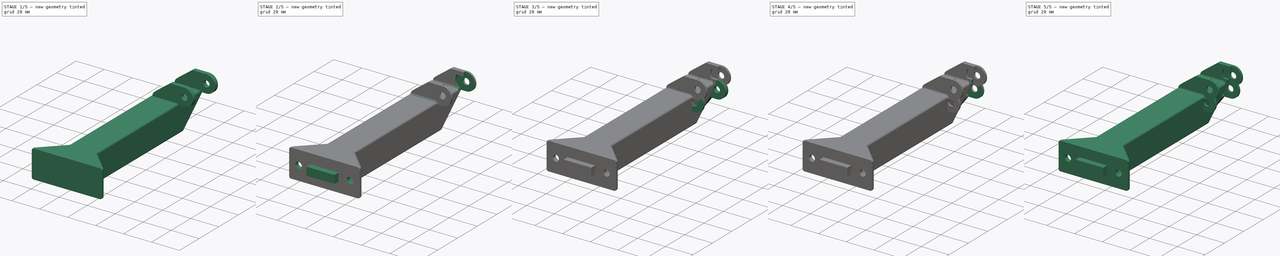
[diagram: build sequence overview — one tinted view per stage of 5, left to right]
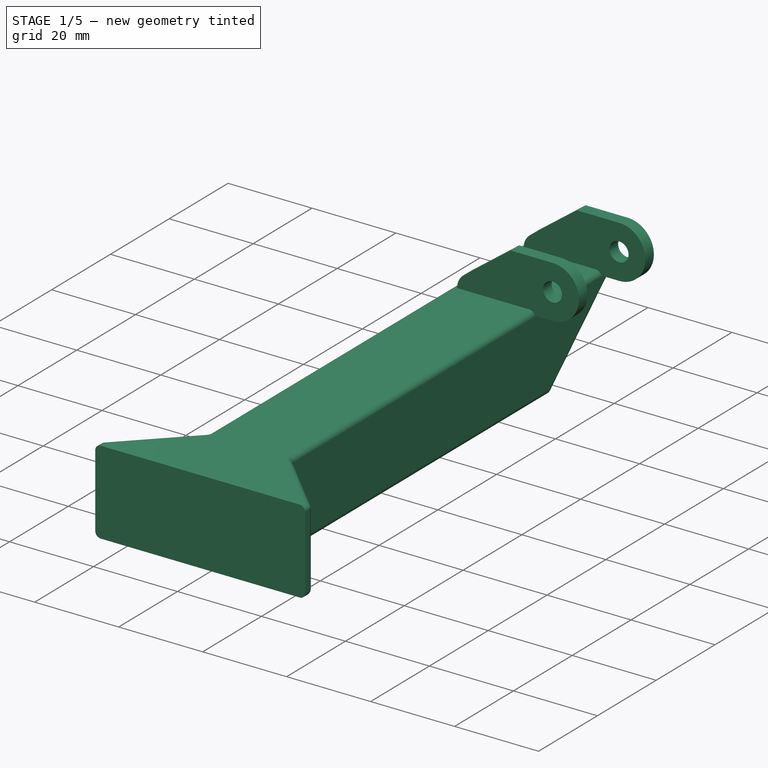
[diagram: stage 1 of 5 — iso view after this stage's code; geometry added in this stage tinted green]
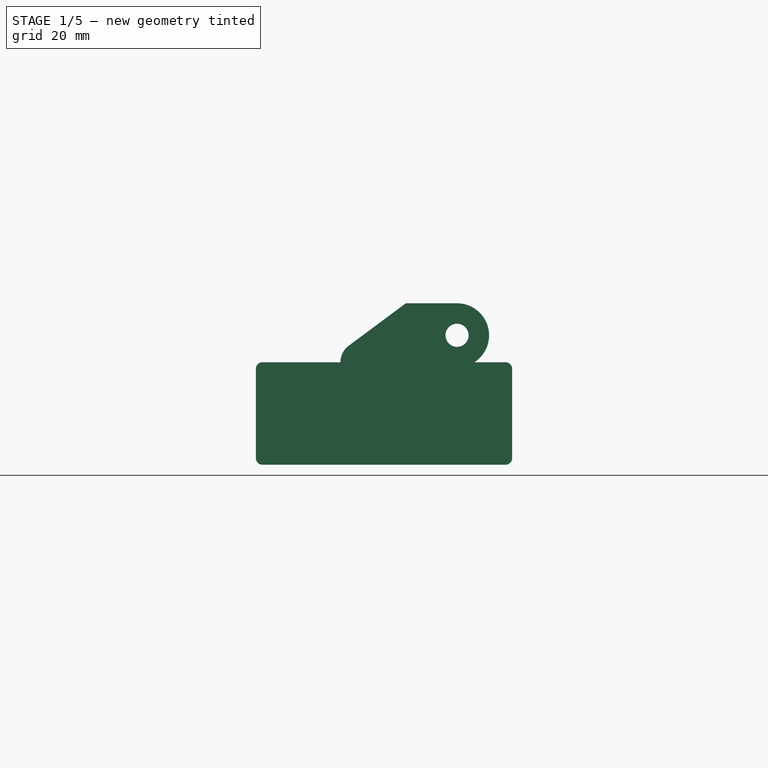
[diagram: stage 1 of 5 — front view after this stage's code; geometry added in this stage tinted green]
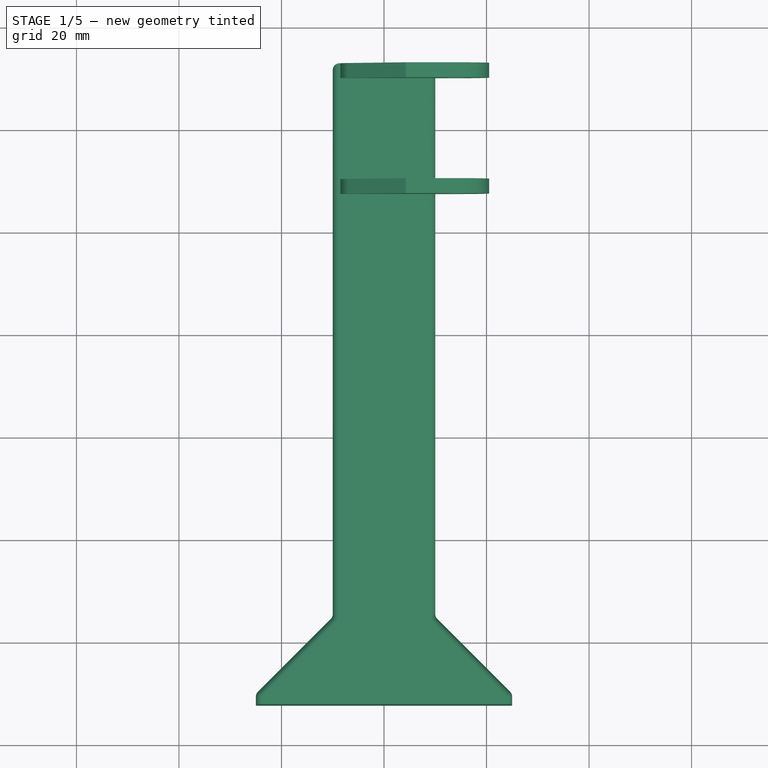
[diagram: stage 1 of 5 — top view after this stage's code; geometry added in this stage tinted green]
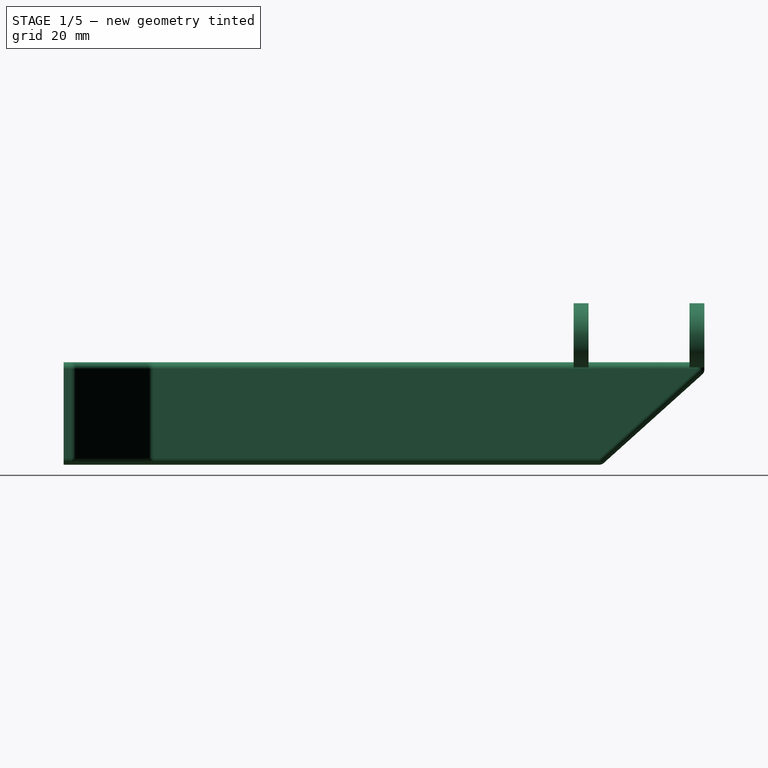
[diagram: stage 1 of 5 — right view after this stage's code; geometry added in this stage tinted green]
FCSTD DOCUMENT  (FreeCAD 0.19R24366 (Git))
Label: DragChain
License: Creative Commons Attribution-NonCommercial-ShareAlike
LicenseURL: http://creativecommons.org/licenses/by-nc-sa/4.0/
objects: Sketcher::SketchObject×33, PartDesign::Pad×11, PartDesign::Pocket×11, PartDesign::Plane×5, PartDesign::Fillet×4, PartDesign::Body×3, Spreadsheet::Sheet×1, PartDesign::AdditiveLoft×1
note: 95 computed .brp shape members not serialized (recipe doc carries the construction recipe); baked Part::Feature solids carry a one-line shape summary decoded from their .brp

FEATURE [PartDesign::Body] Body001  label="10x20End_Profile"
  Group = -> [Sketch007,Sketch008,Sketch014,Sketch009,Pad003,Sketch010,Sketch018,Pocket006,Pad004,Sketch011,Pad005,Sketch012,Pocket002,Sketch013,Pocket003,DatumPlane,Sketch015,Pocket004,Sketch016,Pocket005,Sketch017,Pad006,Fillet001]
  Origin = -> Origin001
  Tip = -> Fillet001
FEATURE [Sketcher::SketchObject] Sketch019  label="10x20EE_TXY"
  FullyConstrained = true
  MapMode = 5
  Support = -> [XY_Plane002]
  sketch-geometry (14):
    g0: LineSegment StartX=-10 StartY=12.75 StartZ=0 EndX=10 EndY=12.75 EndZ=0
    g1: LineSegment StartX=10 StartY=12.75 StartZ=0 EndX=10 EndY=-12.75 EndZ=0
    g2: LineSegment StartX=10 StartY=-12.75 StartZ=0 EndX=-10 EndY=-12.75 EndZ=0
    g3: LineSegment StartX=-10 StartY=-12.75 StartZ=0 EndX=-10 EndY=12.75 EndZ=0
    g4: LineSegment StartX=1.1e-15 StartY=12.75 StartZ=0 EndX=1.1e-15 EndY=-12.75 EndZ=0
    g5: LineSegment StartX=-10 StartY=-1.1e-15 StartZ=0 EndX=10 EndY=-1.1e-15 EndZ=0
    g6: LineSegment StartX=-10 StartY=-12.75 StartZ=0 EndX=-10 EndY=-95.25 EndZ=0
    g7: LineSegment StartX=-25 StartY=-112.25 StartZ=0 EndX=25 EndY=-112.25 EndZ=0
    g8: LineSegment StartX=10 StartY=-95.25 StartZ=0 EndX=10 EndY=-12.75 EndZ=0
    g9: LineSegment StartX=-10 StartY=-95.25 StartZ=0 EndX=10 EndY=-95.25 EndZ=0
    g10: LineSegment StartX=-25 StartY=-112.25 StartZ=0 EndX=-25 EndY=-110.25 EndZ=0
    g11: LineSegment StartX=-25 StartY=-110.25 StartZ=0 EndX=-10 EndY=-95.25 EndZ=0
    g12: LineSegment StartX=25 StartY=-112.25 StartZ=0 EndX=25 EndY=-110.25 EndZ=0
    g13: LineSegment StartX=25 StartY=-110.25 StartZ=0 EndX=10 EndY=-95.25 EndZ=0
  constraints (39):
    c: Coincident(g0,g1)
    c: Coincident(g1,g2)
    c: Coincident(g2,g3)
    c: Coincident(g3,g0)
    c: Horizontal(g0)
    c: Horizontal(g2)
    c: Vertical(g1)
    c: Vertical(g3)
    c: DistanceY(g3,g3) = 25.5  'Width'
    c: PointOnObject(g4,g2)
    c: Vertical(g4)
    c: PointOnObject(g5,g1)
    c: Horizontal(g5)
    c: Symmetric(g0,g0,g4)
    c: Symmetric(g2,g0,g5)
    c: Symmetric(g0,g1,g-1)  '__ANCHOR__'
    c: Vertical(g6)
    c: Horizontal(g7)
    c: Coincident(g9,g6)
    c: Horizontal(g9)
    c: Coincident(g7,g10)
    c: Vertical(g10)
    c: Coincident(g10,g11)
    c: Coincident(g11,g6)
    c: Coincident(g7,g12)
    c: Vertical(g12)
    c: Coincident(g12,g13)
    c: Equal(g10,g12)
    c: Equal(g11,g13)
    c: Angle(g7,g11) = 0.785398
    c: DistanceX(g10,g6) = 15
    c: DistanceY(g10,g10) = 2
    c: DistanceX(g9,g9) = 20
    c: Coincident(g13,g8)
    c: Vertical(g8)
    c: Coincident(g8,g9)
    c: Coincident(g8,g1)
    c: Coincident(g2,g6)
    c: DistanceY(g7,g0) = 125
FEATURE [Sketcher::SketchObject] Sketch020  label="10x20EE_TXZ"
  ExternalGeometry = -> [Sketch019]
  FullyConstrained = true
  MapMode = 5
  Placement = pos=(0,0,0) rot=(1,0,0;1.5708rad)
  Support = -> [XZ_Plane002]
  sketch-geometry (19):
    g0: LineSegment StartX=-6.88736 StartY=13.2094 StartZ=0 EndX=4.25 EndY=21.494 EndZ=0
    g1: LineSegment StartX=4.25 StartY=21.494 StartZ=0 EndX=14.25 EndY=21.494 EndZ=0
    g2: LineSegment StartX=14.25 StartY=21.494 StartZ=0 EndX=14.25 EndY=8.99404 EndZ=0
    g3: ArcOfCircle CenterX=14.25 CenterY=15.244 CenterZ=0 NormalX=0 NormalY=0 NormalZ=1 AngleXU=0 Radius=6.25 StartAngle=4.71239 EndAngle=7.85398
    g4: Circle CenterX=14.25 CenterY=15.244 CenterZ=0 NormalX=0 NormalY=0 NormalZ=1 AngleXU=0 Radius=2.25
    g5: LineSegment StartX=14.25 StartY=15.244 StartZ=0 EndX=20.5 EndY=15.244 EndZ=0
    g6: ArcOfCircle CenterX=14.25 CenterY=15.244 CenterZ=0 NormalX=0 NormalY=0 NormalZ=1 AngleXU=0 Radius=6.25 StartAngle=1.5708 EndAngle=4.71239
    g7: LineSegment StartX=13.5 StartY=21.494 StartZ=0 EndX=13.5 EndY=18.794 EndZ=0
    g8: LineSegment StartX=13.5 StartY=18.794 StartZ=0 EndX=8.50892 EndY=18.794 EndZ=0
    g9: ArcOfCircle CenterX=14.25 CenterY=15.244 CenterZ=0 NormalX=0 NormalY=0 NormalZ=1 AngleXU=0 Radius=6.75 StartAngle=2.58779 EndAngle=4.03131
    g10: LineSegment StartX=8.50892 StartY=18.794 StartZ=0 EndX=8.93419 EndY=18.5311 EndZ=0
    g11: LineSegment StartX=-10 StartY=10 StartZ=0 EndX=-10 EndY=-10 EndZ=0
    g12: LineSegment StartX=-10 StartY=-10 StartZ=0 EndX=10 EndY=-10 EndZ=0
    g13: LineSegment StartX=10 StartY=-10 StartZ=0 EndX=10 EndY=10 EndZ=0
    g14: ArcOfCircle CenterX=-4.5 CenterY=10 CenterZ=0 NormalX=0 NormalY=0 NormalZ=1 AngleXU=0 Radius=4 StartAngle=2.21035 EndAngle=3.14159
    g15: LineSegment StartX=-10 StartY=10 StartZ=0 EndX=10 EndY=10 EndZ=0
    g16: LineSegment StartX=14.25 StartY=8.99404 StartZ=0 EndX=10 EndY=8.99404 EndZ=0
    g17: LineSegment StartX=10 StartY=8.99404 StartZ=0 EndX=-8.5 EndY=8.99404 EndZ=0
    g18: LineSegment StartX=-8.5 StartY=8.99404 StartZ=0 EndX=-8.5 EndY=10 EndZ=0
  constraints (55):
    c: Coincident(g0,g1)
    c: Horizontal(g1)
    c: Coincident(g2,g1)
    c: Vertical(g2)
    c: PointOnObject(g3,g2)
    c: Coincident(g3,g1)
    c: Coincident(g4,g3)
    c: Radius(g3) = 6.25
    c: Coincident(g5,g3)
    c: PointOnObject(g5,g3)
    c: Horizontal(g5)
    c: Radius(g4) = 2.25
    c: Coincident(g6,g3)
    c: PointOnObject(g6,g2)
    c: PointOnObject(g7,g1)
    c: Vertical(g7)
    c: Coincident(g8,g7)
    c: Horizontal(g8)
    c: DistanceY(g7,g7) = 2.7
    c: DistanceX(g7,g5) = 7
    c: Coincident(g9,g3)
    c: Coincident(g9,g8)
    c: Coincident(g10,g8)
    c: PointOnObject(g10,g6)
    c: PointOnObject(g3,g10)
    c: Distance(g10) = 0.5
    c: Vertical(g11)
    c: Coincident(g11,g12)
    c: Horizontal(g12)
    c: Coincident(g12,g13)
    c: Vertical(g13)
    c: Coincident(g2,g3)
    c: Coincident(g2,g6)
    c: Coincident(g13,g9)
    c: DistanceX(g9,g3) = 4.25
    c: Equal(g13,g11)
    c: DistanceX(g12,g12) = 20
    c: Equal(g11,g12)
    c: Tangent(g0,g14) = 1.5708
    c: Radius(g14) = 4
    c: Coincident(g15,g11)
    c: Coincident(g15,g9)
    c: Coincident(g16,g3)
    c: PointOnObject(g16,g13)
    c: Horizontal(g16)
    c: Symmetric(g11,g11,g-3)
    c: PointOnObject(g14,g15)
    c: Distance(g11,g14) = 1.5
    c: DistanceX(g1,g1) = 10
    c: PointOnObject(g14,g15)
    c: Coincident(g17,g16)
    c: Horizontal(g17)
    c: Coincident(g18,g17)
    c: Coincident(g18,g14)
    c: Vertical(g18)
FEATURE [Sketcher::SketchObject] Sketch022
  AttachmentOffset = pos=(0,0,12.75) rot=(0,0,1;0rad)
  ExternalGeometry = -> [Sketch020]
  FullyConstrained = true
  MapMode = 5
  Placement = pos=(0,-12.75,-2.8e-15) rot=(1,0,0;1.5708rad)
  Support = -> [XZ_Plane002]
  expr: .AttachmentOffset.Base.z = Sketch019.Constraints.Width / 2
  sketch-geometry (7):
    g0: Circle CenterX=14.25 CenterY=15.244 CenterZ=0 NormalX=0 NormalY=0 NormalZ=1 AngleXU=0 Radius=2.25
    g1: ArcOfCircle CenterX=-4.5 CenterY=10 CenterZ=0 NormalX=0 NormalY=0 NormalZ=1 AngleXU=0 Radius=4 StartAngle=2.21035 EndAngle=3.14159
    g2: ArcOfCircle CenterX=14.25 CenterY=15.244 CenterZ=0 NormalX=0 NormalY=0 NormalZ=1 AngleXU=0 Radius=6.25 StartAngle=4.71239 EndAngle=7.85398
    g3: LineSegment StartX=14.25 StartY=21.494 StartZ=0 EndX=4.25 EndY=21.494 EndZ=0
    g4: LineSegment StartX=4.25 StartY=21.494 StartZ=0 EndX=-6.88736 EndY=13.2094 EndZ=0
    g5: LineSegment StartX=-8.5 StartY=10 StartZ=0 EndX=-8.5 EndY=8.99404 EndZ=0
    g6: LineSegment StartX=-8.5 StartY=8.99404 StartZ=0 EndX=14.25 EndY=8.99404 EndZ=0
  constraints (16):
    c: Coincident(g0,g-7)
    c: Coincident(g1,g-5)
    c: Coincident(g1,g-5)
    c: Equal(g1,g-5)
    c: Coincident(g2,g-6)
    c: Coincident(g2,g-3)
    c: Equal(g-3,g2)
    c: Equal(g0,g-7)
    c: Coincident(g3,g2)
    c: Coincident(g3,g-6)
    c: Coincident(g4,g3)
    c: Coincident(g4,g1)
    c: Coincident(g5,g1)
    c: Coincident(g5,g-4)
    c: Coincident(g6,g5)
    c: Coincident(g6,g2)
FEATURE [Sketcher::SketchObject] Sketch023
  AttachmentOffset = pos=(0,0,-12.75) rot=(0,0,1;0rad)
  ExternalGeometry = -> [Sketch020]
  FullyConstrained = true
  MapMode = 5
  Placement = pos=(0,12.75,2.8e-15) rot=(1,0,0;1.5708rad)
  Support = -> [XZ_Plane002]
  expr: .AttachmentOffset.Base.z = -Sketch019.Constraints.Width / 2
  sketch-geometry (7):
    g0: ArcOfCircle CenterX=-4.5 CenterY=10 CenterZ=0 NormalX=0 NormalY=0 NormalZ=1 AngleXU=0 Radius=4 StartAngle=2.21035 EndAngle=3.14159
    g1: ArcOfCircle CenterX=14.25 CenterY=15.244 CenterZ=0 NormalX=0 NormalY=0 NormalZ=1 AngleXU=0 Radius=6.25 StartAngle=4.71239 EndAngle=7.85398
    g2: LineSegment StartX=14.25 StartY=8.99404 StartZ=0 EndX=-8.5 EndY=8.99404 EndZ=0
    g3: LineSegment StartX=-8.5 StartY=8.99404 StartZ=0 EndX=-8.5 EndY=10 EndZ=0
    g4: LineSegment StartX=-6.88736 StartY=13.2094 StartZ=0 EndX=4.25 EndY=21.494 EndZ=0
    g5: LineSegment StartX=4.25 StartY=21.494 StartZ=0 EndX=14.25 EndY=21.494 EndZ=0
    g6: Circle CenterX=14.25 CenterY=15.244 CenterZ=0 NormalX=0 NormalY=0 NormalZ=1 AngleXU=0 Radius=2.25
  constraints (16):
    c: Coincident(g1,g2)
    c: Coincident(g0,g4)
    c: Coincident(g4,g5)
    c: Coincident(g5,g1)
    c: Coincident(g3,g0)
    c: Coincident(g0,g-4)
    c: Coincident(g0,g-4)
    c: Equal(g0,g-4)
    c: Coincident(g1,g-5)
    c: Coincident(g1,g-3)
    c: Equal(g-3,g1)
    c: Coincident(g4,g-5)
    c: Coincident(g3,g-6)
    c: Coincident(g3,g2)
    c: Coincident(g6,g1)
    c: Equal(g6,g-7)
FEATURE [Sketcher::SketchObject] Sketch024
  AttachmentOffset = pos=(0,0,11.35) rot=(0,0,1;0rad)
  ExternalGeometry = -> [Sketch020]
  FullyConstrained = true
  MapMode = 5
  Placement = pos=(0,-11.35,-2.5e-15) rot=(1,0,0;1.5708rad)
  Support = -> [XZ_Plane002]
  expr: .AttachmentOffset.Base.z = <<Sketch022>>.AttachmentOffset.Base.z - 1.4mm
  sketch-geometry (8):
    g0: LineSegment StartX=20.6 StartY=21.494 StartZ=0 EndX=20.6 EndY=8.99404 EndZ=0
    g1: LineSegment StartX=20.5 StartY=21.494 StartZ=0 EndX=20.5 EndY=8.99404 EndZ=0
    g2: LineSegment StartX=13.5 StartY=21.494 StartZ=0 EndX=20.6 EndY=21.494 EndZ=0
    g3: LineSegment StartX=10 StartY=8.99404 StartZ=0 EndX=20.6 EndY=8.99404 EndZ=0
    g4: ArcOfCircle CenterX=14.25 CenterY=15.244 CenterZ=0 NormalX=0 NormalY=0 NormalZ=1 AngleXU=0 Radius=6.75 StartAngle=2.58779 EndAngle=4.03131
    g5: LineSegment StartX=8.50892 StartY=18.794 StartZ=0 EndX=13.5 EndY=18.794 EndZ=0
    g6: LineSegment StartX=13.5 StartY=18.794 StartZ=0 EndX=13.5 EndY=21.494 EndZ=0
    g7: LineSegment StartX=10 StartY=10 StartZ=0 EndX=10 EndY=8.99404 EndZ=0
  constraints (21):
    c: Vertical(g0)
    c: Vertical(g1)
    c: DistanceX(g1,g0) = 0.1
    c: Horizontal(g2)
    c: Coincident(g2,g0)
    c: PointOnObject(g1,g2)
    c: Coincident(g3,g0)
    c: Horizontal(g3)
    c: PointOnObject(g1,g3)
    c: Coincident(g5,g4)
    c: Coincident(g6,g5)
    c: Coincident(g6,g2)
    c: Coincident(g7,g4)
    c: Coincident(g3,g7)
    c: Tangent(g1,g-3)
    c: Coincident(g2,g-5)
    c: Coincident(g4,g-4)
    c: Coincident(g4,g-4)
    c: Equal(g4,g-4)
    c: Coincident(g5,g-5)
    c: Coincident(g-6,g3)
FEATURE [Sketcher::SketchObject] Sketch025
  AttachmentOffset = pos=(0,0,-11.35) rot=(0,0,1;0rad)
  ExternalGeometry = -> [Sketch020]
  FullyConstrained = true
  MapMode = 5
  Placement = pos=(0,11.35,2.5e-15) rot=(1,0,0;1.5708rad)
  Support = -> [XZ_Plane002]
  expr: .AttachmentOffset.Base.z = <<Sketch023>>.AttachmentOffset.Base.z + 1.4mm
  sketch-geometry (7):
    g0: ArcOfCircle CenterX=14.25 CenterY=15.244 CenterZ=0 NormalX=0 NormalY=0 NormalZ=1 AngleXU=0 Radius=6.25 StartAngle=4.71239 EndAngle=7.85399
    g1: ArcOfCircle CenterX=14.25 CenterY=15.244 CenterZ=0 NormalX=0 NormalY=0 NormalZ=1 AngleXU=0 Radius=6.75 StartAngle=2.58779 EndAngle=4.03131
    g2: LineSegment StartX=14.25 StartY=21.494 StartZ=0 EndX=13.5 EndY=21.494 EndZ=0
    g3: LineSegment StartX=13.5 StartY=21.494 StartZ=0 EndX=13.5 EndY=18.794 EndZ=0
    g4: LineSegment StartX=13.5 StartY=18.794 StartZ=0 EndX=8.50892 EndY=18.794 EndZ=0
    g5: LineSegment StartX=10 StartY=10 StartZ=0 EndX=10 EndY=8.99404 EndZ=0
    g6: LineSegment StartX=10 StartY=8.99404 StartZ=0 EndX=14.25 EndY=8.99404 EndZ=0
  constraints (16):
    c: Coincident(g0,g2)
    c: Coincident(g2,g3)
    c: Coincident(g3,g4)
    c: Coincident(g4,g1)
    c: Coincident(g1,g5)
    c: Coincident(g5,g6)
    c: Coincident(g6,g0)
    c: Coincident(g0,g-3)
    c: Coincident(g0,g-3)
    c: Equal(g0,g-3)
    c: Coincident(g1,g-4)
    c: Coincident(g1,g-4)
    c: Equal(g1,g-4)
    c: Coincident(g5,g-6)
    c: Coincident(g3,g-5)
    c: Coincident(g2,g-5)
FEATURE [Sketcher::SketchObject] Sketch027  label="10x20EE_TYZ"
  ExternalGeometry = -> [Sketch020,Sketch019]
  FullyConstrained = true
  MapMode = 5
  Placement = pos=(0,0,0) rot=(0.57735,0.57735,0.57735;2.0944rad)
  Support = -> [YZ_Plane002]
  sketch-geometry (7):
    g0: LineSegment StartX=-12.75 StartY=-10 StartZ=0 EndX=12.75 EndY=-10 EndZ=0
    g1: LineSegment StartX=12.75 StartY=-10 StartZ=0 EndX=12.75 EndY=8.99404 EndZ=0
    g2: LineSegment StartX=12.75 StartY=8.99404 StartZ=0 EndX=-12.75 EndY=8.99404 EndZ=0
    g3: LineSegment StartX=-12.75 StartY=8.99404 StartZ=0 EndX=-12.75 EndY=-10 EndZ=0
    g4: LineSegment StartX=-12.75 StartY=-10 StartZ=0 EndX=-112.25 EndY=-10 EndZ=0
    g5: LineSegment StartX=-112.25 StartY=-10 StartZ=0 EndX=-112.25 EndY=8.99404 EndZ=0
    g6: LineSegment StartX=-112.25 StartY=8.99404 StartZ=0 EndX=-12.75 EndY=8.99404 EndZ=0
  constraints (20):
    c: Coincident(g2,g3)
    c: Coincident(g2,g6)
    c: Coincident(g1,g2)
    c: Coincident(g0,g1)
    c: Horizontal(g2)
    c: Horizontal(g6)
    c: Coincident(g5,g6)
    c: Vertical(g5)
    c: Horizontal(g4)
    c: Horizontal(g0)
    c: Vertical(g1)
    c: Coincident(g4,g5)
    c: Coincident(g0,g3)
    c: Coincident(g0,g4)
    c: Vertical(g3)
    c: PointOnObject(g-3,g0)
    c: PointOnObject(g-5,g1)
    c: PointOnObject(g-4,g2)
    c: PointOnObject(g-6,g3)
    c: PointOnObject(g-7,g5)
FEATURE [PartDesign::Plane] DatumPlane001
  Length = 158.058
  MapMode = 7
  Placement = pos=(-10,12.75,0) rot=(0.57735,-0.57735,-0.57735;2.0944rad)
  ResizeMode = 0
  Support = -> [Sketch019]
  Width = 66.8077
FEATURE [Sketcher::SketchObject] Sketch030
  ExternalGeometry = -> [Sketch019]
  FullyConstrained = true
  MapMode = 5
  Support = -> [XY_Plane002]
  sketch-geometry (6):
    g0: LineSegment StartX=25 StartY=-110.25 StartZ=0 EndX=25 EndY=-112.25 EndZ=0
    g1: LineSegment StartX=25 StartY=-112.25 StartZ=0 EndX=-25 EndY=-112.25 EndZ=0
    g2: LineSegment StartX=-25 StartY=-112.25 StartZ=0 EndX=-25 EndY=-110.25 EndZ=0
    g3: LineSegment StartX=-25 StartY=-110.25 StartZ=0 EndX=-10 EndY=-95.25 EndZ=0
    g4: LineSegment StartX=-10 StartY=-95.25 StartZ=0 EndX=10 EndY=-95.25 EndZ=0
    g5: LineSegment StartX=10 StartY=-95.25 StartZ=0 EndX=25 EndY=-110.25 EndZ=0
  constraints (12):
    c: Coincident(g-5,g0)
    c: Coincident(g0,g-3)
    c: Coincident(g0,g1)
    c: Coincident(g1,g-3)
    c: Coincident(g1,g2)
    c: Coincident(g2,g-4)
    c: Coincident(g2,g3)
    c: Coincident(g3,g-4)
    c: Coincident(g3,g4)
    c: Coincident(g4,g-5)
    c: Coincident(g4,g5)
    c: Coincident(g5,g0)
FEATURE [PartDesign::Plane] DatumPlane002
  Length = 60
  MapMode = 7
  Placement = pos=(25,-112.25,0) rot=(1,0,0;1.5708rad)
  ResizeMode = 0
  Support = -> [Sketch019]
  Width = 60
FEATURE [Sketcher::SketchObject] Sketch031
  ExternalGeometry = -> [Sketch019,Sketch027]
  FullyConstrained = true
  MapMode = 5
  Placement = pos=(25,-112.25,0) rot=(1,0,0;1.5708rad)
  Support = -> [DatumPlane002]
  expr: Constraints[2] = <<Screws>>.M4WasherRadius + 2mm
  expr: Constraints[1] = <<Screws>>.M4Radius
  sketch-geometry (2):
    g0: Circle CenterX=-43.3 CenterY=1.9e-15 CenterZ=0 NormalX=0 NormalY=0 NormalZ=1 AngleXU=0 Radius=2.2
    g1: Circle CenterX=-6.7 CenterY=1.56e-14 CenterZ=0 NormalX=0 NormalY=0 NormalZ=1 AngleXU=0 Radius=2.2
  constraints (5):
    c: PointOnObject(g0,g-3)
    c: Radius(g0) = 2.2
    c: Distance(g0,g-3) = 6.7
    c: Equal(g1,g0)
    c: Symmetric(g1,g0,g-5)
FEATURE [Sketcher::SketchObject] Sketch032
  AttachmentOffset = pos=(0,0,-3) rot=(0,0,1;0rad)
  ExternalGeometry = -> [Sketch019,Sketch027]
  FullyConstrained = true
  MapMode = 5
  Placement = pos=(25,-109.25,-7e-16) rot=(1,0,0;1.5708rad)
  Support = -> [DatumPlane002]
  expr: Constraints[1] = <<Screws>>.M4WasherRadius
  sketch-geometry (3):
    g0: Circle CenterX=-43.3 CenterY=1.9e-15 CenterZ=0 NormalX=0 NormalY=0 NormalZ=1 AngleXU=0 Radius=4.7
    g1: GeomPoint X=-48 Y=9e-16 Z=0
    g2: Circle CenterX=-6.7 CenterY=1.56e-14 CenterZ=0 NormalX=0 NormalY=0 NormalZ=1 AngleXU=0 Radius=4.7
  constraints (7):
    c: PointOnObject(g1,g0)
    c: Radius(g0) = 4.7
    c: Equal(g2,g0)
    c: PointOnObject(g0,g-7)
    c: PointOnObject(g1,g-7)
    c: Distance(g1,g-7) = 2
    c: Symmetric(g0,g2,g-5)
FEATURE [PartDesign::Plane] DatumPlane003
  Length = 60
  MapMode = 7
  Placement = pos=(10,12.75,0) rot=(0,0.707107,0.707107;3.14159rad)
  ResizeMode = 0
  Support = -> [Sketch019]
  Width = 60
FEATURE [PartDesign::Plane] DatumPlane004
  Length = 60
  MapMode = 7
  Placement = pos=(-10,-12.75,0) rot=(1,0,0;1.5708rad)
  ResizeMode = 0
  Support = -> [Sketch019]
  Width = 60
FEATURE [Sketcher::SketchObject] Sketch035
  ExternalGeometry = -> [Sketch020]
  FullyConstrained = true
  MapMode = 5
  Placement = pos=(10,12.75,0) rot=(0,0.707107,0.707107;3.14159rad)
  Support = -> [DatumPlane003]
  sketch-geometry (4):
    g0: LineSegment StartX=0 StartY=10 StartZ=0 EndX=-8.3866e-12 EndY=7.98809 EndZ=0
    g1: LineSegment StartX=-8.3866e-12 StartY=7.98809 StartZ=0 EndX=20 EndY=7.98809 EndZ=0
    g2: LineSegment StartX=20 StartY=7.98809 StartZ=0 EndX=20 EndY=10 EndZ=0
    g3: LineSegment StartX=0 StartY=10 StartZ=0 EndX=20 EndY=10 EndZ=0
  constraints (9):
    c: Coincident(g3,g0)
    c: Coincident(g2,g3)
    c: Coincident(g1,g2)
    c: Coincident(g0,g-3)
    c: Coincident(g2,g-4)
    c: PointOnObject(g1,g-4)
    c: Parallel(g1,g3)
    c: Coincident(g0,g1)
    c: Symmetric(g0,g0,g-5)
FEATURE [Sketcher::SketchObject] Sketch036
  AttachmentOffset = pos=(0,0,-20) rot=(0,0,1;0rad)
  ExternalGeometry = -> [Sketch020]
  FullyConstrained = true
  MapMode = 5
  Placement = pos=(10,-7.25,4.4e-15) rot=(0,0.707107,0.707107;3.14159rad)
  Support = -> [DatumPlane003]
  sketch-geometry (4):
    g0: LineSegment StartX=0 StartY=-10 StartZ=0 EndX=20 EndY=-10 EndZ=0
    g1: LineSegment StartX=20 StartY=-10 StartZ=0 EndX=20 EndY=10 EndZ=0
    g2: LineSegment StartX=20 StartY=10 StartZ=0 EndX=0 EndY=10 EndZ=0
    g3: LineSegment StartX=0 StartY=10 StartZ=0 EndX=0 EndY=-10 EndZ=0
  constraints (8):
    c: Coincident(g0,g1)
    c: Coincident(g1,g2)
    c: Coincident(g2,g3)
    c: Coincident(g3,g0)
    c: Coincident(g-3,g1)
    c: Coincident(g0,g-4)
    c: Coincident(g0,g-4)
    c: Coincident(g2,g-3)
FEATURE [Sketcher::SketchObject] Sketch037
  ExternalGeometry = -> [Sketch020]
  FullyConstrained = true
  MapMode = 5
  Placement = pos=(25,-112.25,0) rot=(1,0,0;1.5708rad)
  Support = -> [DatumPlane002]
  sketch-geometry (4):
    g0: LineSegment StartX=-35 StartY=-10 StartZ=0 EndX=-15 EndY=-10 EndZ=0
    g1: LineSegment StartX=-15 StartY=-10 StartZ=0 EndX=-15 EndY=10 EndZ=0
    g2: LineSegment StartX=-15 StartY=10 StartZ=0 EndX=-35 EndY=10 EndZ=0
    g3: LineSegment StartX=-35 StartY=10 StartZ=0 EndX=-35 EndY=-10 EndZ=0
  constraints (8):
    c: Coincident(g0,g1)
    c: Coincident(g1,g2)
    c: Coincident(g2,g3)
    c: Coincident(g3,g0)
    c: Coincident(g0,g-3)
    c: Coincident(g0,g-3)
    c: Coincident(g2,g-4)
    c: Coincident(g1,g-4)
FEATURE [PartDesign::AdditiveLoft] AdditiveLoft
  Closed = false
  Placement = pos=(10,12.75,0) rot=(0,0.707107,0.707107;3.14159rad)
  Profile = -> Sketch035
  Ruled = true
  Sections = -> [Sketch036,Sketch037]
FEATURE [PartDesign::Pad] Pad011
  BaseFeature = -> AdditiveLoft
  Direction = (1,1,1)
  Length = 20
  Length2 = 0
  Midplane = true
  Placement = pos=(10,12.75,0) rot=(0,0.707107,0.707107;3.14159rad)
  Profile = -> Sketch030
  Refine = true
  Type = 0
  expr: Length = 20
FEATURE [PartDesign::Fillet] Fillet002
  Base = -> Pad011 [Edge19,Edge25,Edge18,Edge26,Edge20,Edge13,Edge12,Edge14,Edge5,Edge23,Edge29,Edge21,Edge22,Edge28,Edge16,Edge17,Edge15,Edge8,Edge9,Edge1,Edge3,Edge2]
  BaseFeature = -> Pad011
  Placement = pos=(10,12.75,0) rot=(0,0.707107,0.707107;3.14159rad)
  Radius = 1.3
  SupportTransform = false
FEATURE [PartDesign::Pad] Pad008
  BaseFeature = -> Fillet002
  Direction = (1,1,1)
  Length = 2.9
  Length2 = 100
  Placement = pos=(10,12.75,0) rot=(0,0.707107,0.707107;3.14159rad)
  Profile = -> Sketch022
  Refine = true
  Reversed = true
  Type = 0
FEATURE [PartDesign::Pad] Pad009
  BaseFeature = -> Pad008
  Direction = (1,1,1)
  Length = 2.9
  Length2 = 100
  Placement = pos=(10,12.75,0) rot=(0,0.707107,0.707107;3.14159rad)
  Profile = -> Sketch023
  Refine = true
  Type = 0
  expr: Length = <<Pad008>>.Length
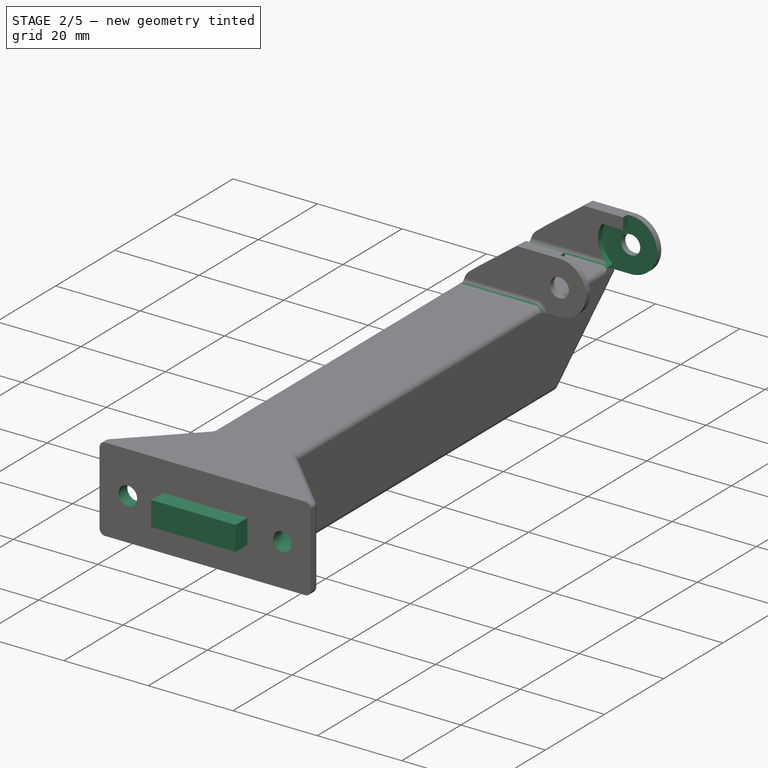
[diagram: stage 2 of 5 — iso view after this stage's code; geometry added in this stage tinted green]
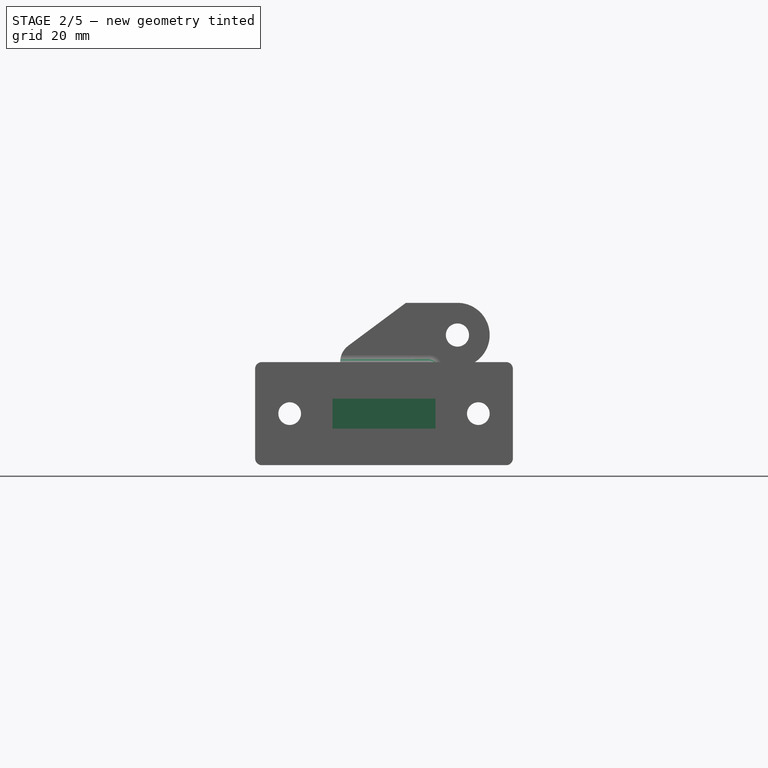
[diagram: stage 2 of 5 — front view after this stage's code; geometry added in this stage tinted green]
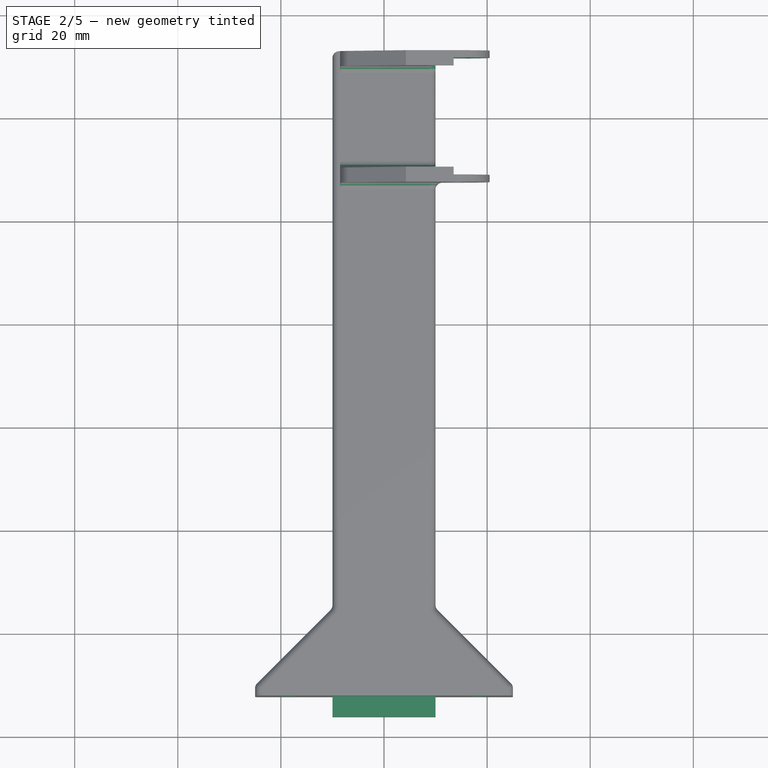
[diagram: stage 2 of 5 — top view after this stage's code; geometry added in this stage tinted green]
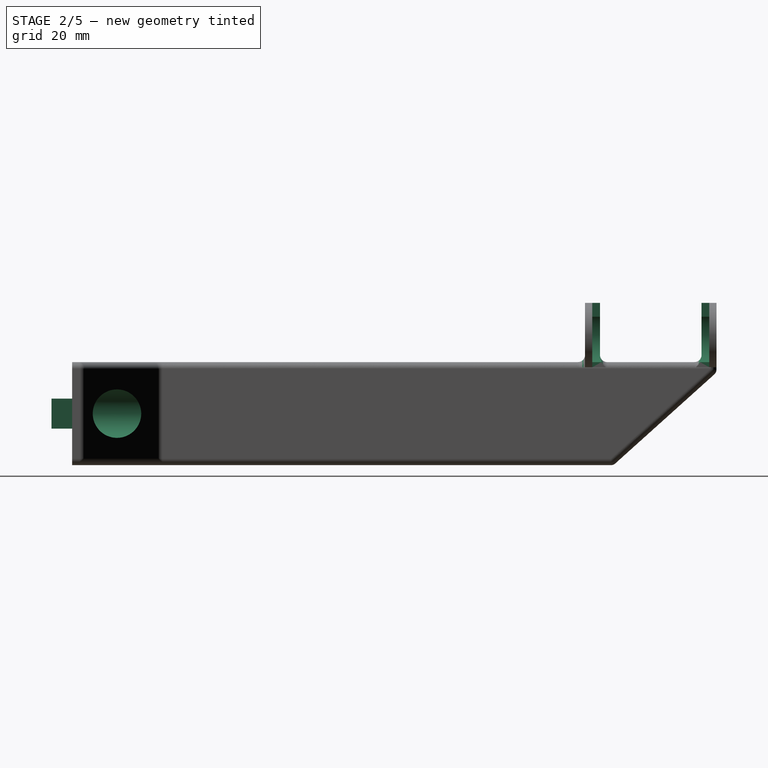
[diagram: stage 2 of 5 — right view after this stage's code; geometry added in this stage tinted green]
FEATURE [PartDesign::Pocket] Pocket008
  BaseFeature = -> Pad009
  Length = 11.35
  Length2 = 100
  Placement = pos=(10,12.75,0) rot=(0,0.707107,0.707107;3.14159rad)
  Profile = -> Sketch024
  Type = 0
  expr: Length = <<Sketch024>>.AttachmentOffset.Base.z
FEATURE [PartDesign::Pocket] Pocket009
  BaseFeature = -> Pocket008
  Length = 11.35
  Length2 = 100
  Placement = pos=(10,12.75,0) rot=(0,0.707107,0.707107;3.14159rad)
  Profile = -> Sketch025
  Reversed = true
  Type = 0
  expr: Length = -<<Sketch025>>.AttachmentOffset.Base.z
FEATURE [PartDesign::Pocket] Pocket010
  BaseFeature = -> Pocket009
  Length = 12
  Length2 = 100
  Placement = pos=(10,12.75,0) rot=(0,0.707107,0.707107;3.14159rad)
  Profile = -> Sketch031
  Type = 0
FEATURE [PartDesign::Pocket] Pocket011
  BaseFeature = -> Pocket010
  Length = 12
  Length2 = 100
  Placement = pos=(10,12.75,0) rot=(0,0.707107,0.707107;3.14159rad)
  Profile = -> Sketch032
  Refine = true
  Type = 0
FEATURE [Sketcher::SketchObject] Sketch038
  ExternalGeometry = -> [Sketch020,Sketch019]
  FullyConstrained = true
  MapMode = 5
  Placement = pos=(25,-112.25,0) rot=(1,0,0;1.5708rad)
  Support = -> [DatumPlane002]
  sketch-geometry (4):
    g0: LineSegment StartX=-35 StartY=2.9 StartZ=0 EndX=-15 EndY=2.9 EndZ=0
    g1: LineSegment StartX=-15 StartY=2.9 StartZ=0 EndX=-15 EndY=-2.9 EndZ=0
    g2: LineSegment StartX=-15 StartY=-2.9 StartZ=0 EndX=-35 EndY=-2.9 EndZ=0
    g3: LineSegment StartX=-35 StartY=-2.9 StartZ=0 EndX=-35 EndY=2.9 EndZ=0
  constraints (11):
    c: Coincident(g0,g1)
    c: Coincident(g1,g2)
    c: Coincident(g2,g3)
    c: Coincident(g3,g0)
    c: PointOnObject(g0,g-3)
    c: PointOnObject(g0,g-4)
    c: Symmetric(g0,g2,g-5)
    c: DistanceY(g3,g3) = 5.8
    c: Equal(g3,g1)
    c: Parallel(g0,g-5)
    c: PointOnObject(g1,g-4)
FEATURE [PartDesign::Pad] Pad012
  BaseFeature = -> Pocket011
  Direction = (1,1,1)
  Length = 4
  Length2 = 100
  Placement = pos=(10,12.75,0) rot=(0,0.707107,0.707107;3.14159rad)
  Profile = -> Sketch038
  Type = 0
FEATURE [PartDesign::Fillet] Fillet003
  Base = -> Pad012 [Edge47,Edge58,Edge45]
  BaseFeature = -> Pad012
  Placement = pos=(10,12.75,0) rot=(0,0.707107,0.707107;3.14159rad)
  Radius = 1.4
  SupportTransform = false
FEATURE [PartDesign::Body] Body002  label="10x20End_Elevated"
  Group = -> [Sketch019,Sketch020,Sketch027,DatumPlane001,DatumPlane002,DatumPlane003,DatumPlane004,Sketch035,Sketch036,Sketch037,AdditiveLoft,Pad011,Sketch022,Fillet002,Pad008,Sketch023,Pad009,Sketch024,Pocket008,Sketch025,Pocket009,Sketch030,Sketch031,Pocket010,Sketch032,Pocket011,Sketch038,Pad012,Fillet003]
  Origin = -> Origin002
  Tip = -> Fillet003
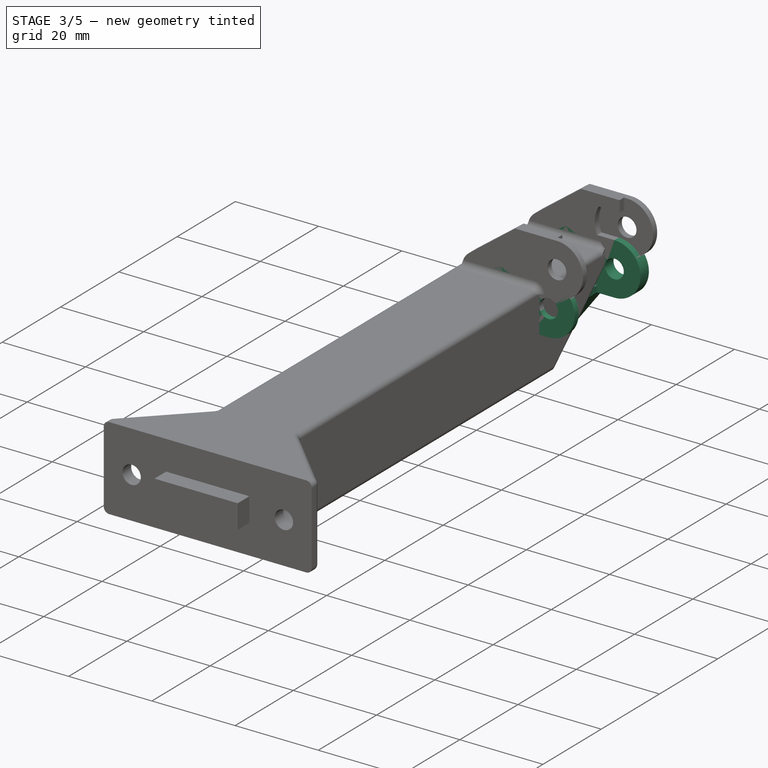
[diagram: stage 3 of 5 — iso view after this stage's code; geometry added in this stage tinted green]
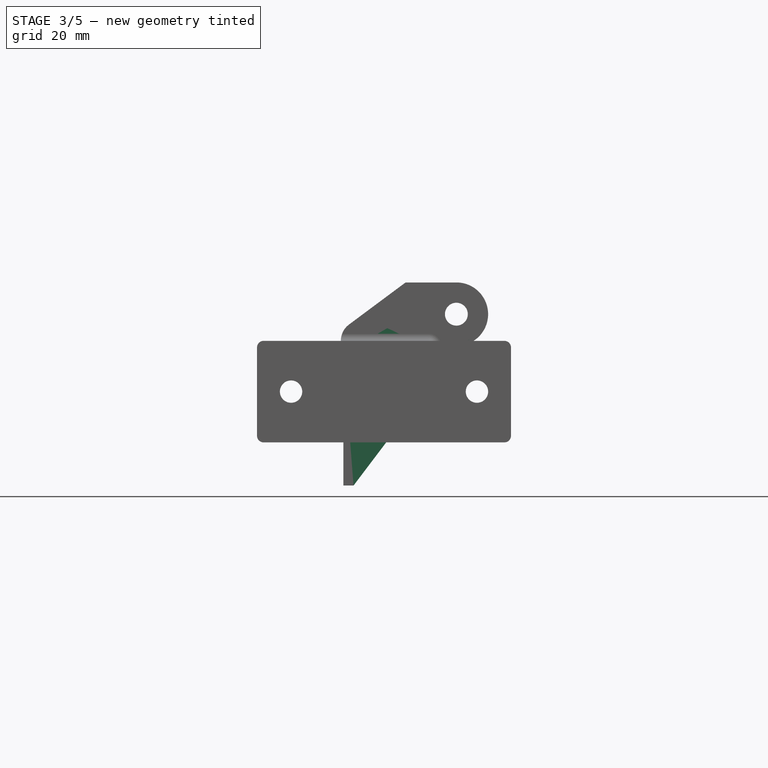
[diagram: stage 3 of 5 — front view after this stage's code; geometry added in this stage tinted green]
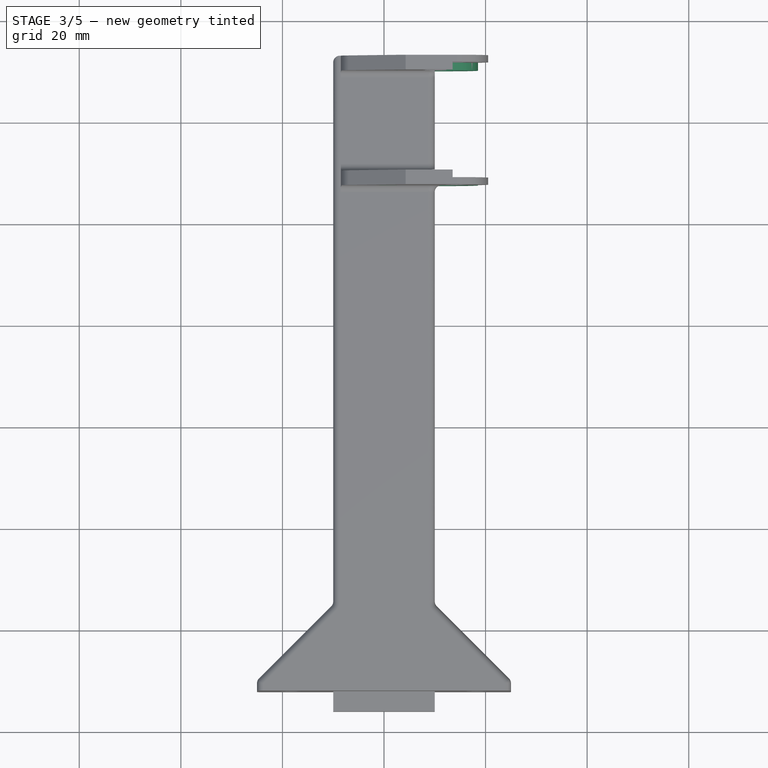
[diagram: stage 3 of 5 — top view after this stage's code; geometry added in this stage tinted green]
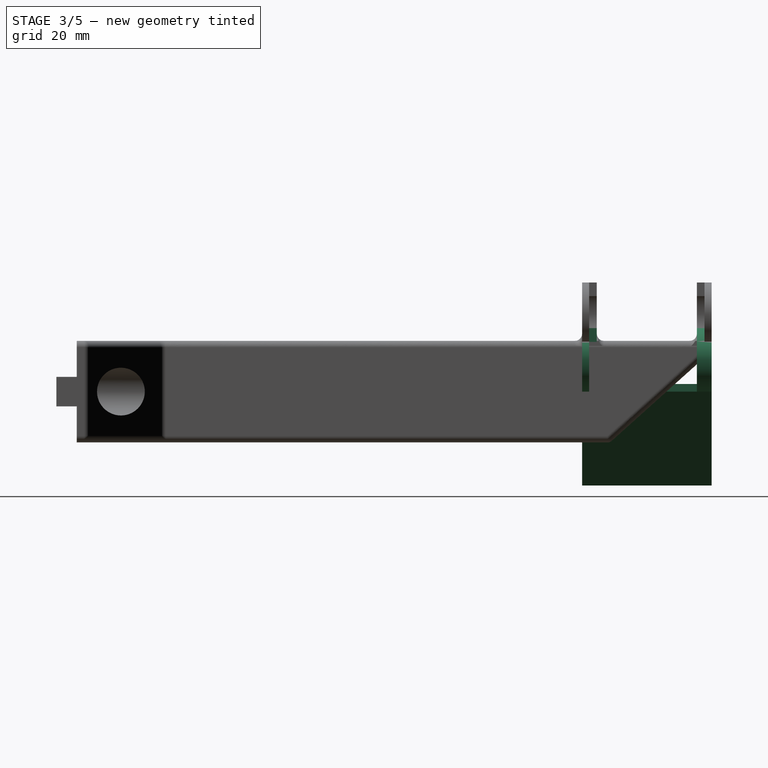
[diagram: stage 3 of 5 — right view after this stage's code; geometry added in this stage tinted green]
FEATURE [PartDesign::Body] Body  label="10x20End"
  Group = -> [Sketch,Sketch001,Sketch002,Pad,Sketch003,Pad001,Sketch004,Pad002,Sketch005,Pocket,Sketch006,Pocket001,Fillet]
  Origin = -> Origin
  Tip = -> Fillet
FEATURE [Sketcher::SketchObject] Sketch007  label="10x20EP_TXY"
  FullyConstrained = true
  MapMode = 5
  Support = -> [XY_Plane001]
  sketch-geometry (6):
    g0: LineSegment StartX=-8 StartY=12.75 StartZ=0 EndX=8 EndY=12.75 EndZ=0
    g1: LineSegment StartX=8 StartY=12.75 StartZ=0 EndX=8 EndY=-12.75 EndZ=0
    g2: LineSegment StartX=8 StartY=-12.75 StartZ=0 EndX=-8 EndY=-12.75 EndZ=0
    g3: LineSegment StartX=-8 StartY=-12.75 StartZ=0 EndX=-8 EndY=12.75 EndZ=0
    g4: LineSegment StartX=0 StartY=12.75 StartZ=0 EndX=0 EndY=-12.75 EndZ=0
    g5: LineSegment StartX=-8 StartY=9e-16 StartZ=0 EndX=8 EndY=9e-16 EndZ=0
  constraints (17):
    c: Coincident(g0,g1)
    c: Coincident(g1,g2)
    c: Coincident(g2,g3)
    c: Coincident(g3,g0)
    c: Horizontal(g0)
    c: Horizontal(g2)
    c: Vertical(g1)
    c: Vertical(g3)
    c: DistanceX(g0,g0) = 16
    c: DistanceY(g3,g3) = 25.5  'Width'
    c: PointOnObject(g4,g2)
    c: Vertical(g4)
    c: PointOnObject(g5,g1)
    c: Horizontal(g5)
    c: Symmetric(g0,g0,g4)
    c: Symmetric(g2,g0,g5)
    c: Symmetric(g0,g1,g-1)  '__ANCHOR__'
FEATURE [Sketcher::SketchObject] Sketch008  label="10x20EP_TXZ"
  ExternalGeometry = -> [Sketch007]
  FullyConstrained = true
  MapMode = 5
  Placement = pos=(0,0,0) rot=(1,0,0;1.5708rad)
  Support = -> [XZ_Plane001]
  sketch-geometry (18):
    g0: LineSegment StartX=12.25 StartY=2.7e-15 StartZ=0 EndX=-8 EndY=2.7e-15 EndZ=0
    g1: LineSegment StartX=-8 StartY=2.7e-15 StartZ=0 EndX=-8 EndY=7.5 EndZ=0
    g2: LineSegment StartX=-8 StartY=7.5 StartZ=0 EndX=0.660254 EndY=12.5 EndZ=0
    g3: LineSegment StartX=0.660254 StartY=12.5 StartZ=0 EndX=12.25 EndY=12.5 EndZ=0
    g4: LineSegment StartX=12.25 StartY=12.5 StartZ=0 EndX=12.25 EndY=3.6e-15 EndZ=0
    g5: ArcOfCircle CenterX=12.25 CenterY=6.25 CenterZ=0 NormalX=0 NormalY=0 NormalZ=1 AngleXU=0 Radius=6.25 StartAngle=4.71239 EndAngle=7.85398
    g6: Circle CenterX=12.25 CenterY=6.25 CenterZ=0 NormalX=0 NormalY=0 NormalZ=1 AngleXU=0 Radius=2.25
    g7: LineSegment StartX=12.25 StartY=6.25 StartZ=0 EndX=18.5 EndY=6.25 EndZ=0
    g8: ArcOfCircle CenterX=12.25 CenterY=6.25 CenterZ=0 NormalX=0 NormalY=0 NormalZ=1 AngleXU=0 Radius=6.25 StartAngle=1.5708 EndAngle=4.71239
    g9: LineSegment StartX=11.5 StartY=12.5 StartZ=0 EndX=11.5 EndY=9.8 EndZ=0
    g10: LineSegment StartX=11.5 StartY=9.8 StartZ=0 EndX=6.50892 EndY=9.8 EndZ=0
    g11: ArcOfCircle CenterX=12.25 CenterY=6.25 CenterZ=0 NormalX=0 NormalY=0 NormalZ=1 AngleXU=0 Radius=6.75 StartAngle=2.58779 EndAngle=4.03131
    g12: LineSegment StartX=6.50892 StartY=9.8 StartZ=0 EndX=6.93419 EndY=9.53704 EndZ=0
    g13: LineSegment StartX=8 StartY=3.6e-15 StartZ=0 EndX=8 EndY=1.00596 EndZ=0
    g14: LineSegment StartX=-8 StartY=1.5 StartZ=0 EndX=7.45417 EndY=1.5 EndZ=0
    g15: LineSegment StartX=-8 StartY=2.7e-15 StartZ=0 EndX=-8 EndY=-18.5 EndZ=0
    g16: LineSegment StartX=-8 StartY=-18.5 StartZ=0 EndX=8 EndY=-18.5 EndZ=0
    g17: LineSegment StartX=8 StartY=-18.5 StartZ=0 EndX=8 EndY=3.6e-15 EndZ=0
  constraints (52):
    c: Horizontal(g0)
    c: Coincident(g0,g1)
    c: Vertical(g1)
    c: Coincident(g1,g2)
    c: Coincident(g2,g3)
    c: Horizontal(g3)
    c: Coincident(g4,g3)
    c: Coincident(g4,g0)
    c: Vertical(g4)
    c: PointOnObject(g5,g4)
    c: Coincident(g5,g3)
    c: Coincident(g5,g0)
    c: Coincident(g6,g5)
    c: Radius(g5) = 6.25
    c: Coincident(g7,g5)
    c: PointOnObject(g7,g5)
    c: Horizontal(g7)
    c: DistanceX(g0,g7) = 26.5
    c: DistanceY(g1,g1) = 7.5
    c: Angle(g0,g2) = 0.523599
    c: Radius(g6) = 2.25
    c: Coincident(g0,g-3)
    c: Coincident(g8,g5)
    c: Coincident(g8,g0)
    c: PointOnObject(g8,g4)
    c: PointOnObject(g9,g3)
    c: Vertical(g9)
    c: Coincident(g10,g9)
    c: Horizontal(g10)
    c: DistanceY(g9,g9) = 2.7
    c: DistanceX(g9,g7) = 7
    c: Coincident(g11,g5)
    c: Coincident(g11,g10)
    c: Coincident(g12,g10)
    c: PointOnObject(g12,g8)
    c: PointOnObject(g5,g12)
    c: Distance(g12) = 0.5
    c: Coincident(g13,g-3)
    c: Coincident(g13,g11)
    c: Vertical(g13)
    c: PointOnObject(g14,g1)
    c: PointOnObject(g14,g11)
    c: Horizontal(g14)
    c: DistanceY(g0,g14) = 1.5  'BaseThickness'
    c: Coincident(g0,g15)
    c: Vertical(g15)
    c: Coincident(g15,g16)
    c: Horizontal(g16)
    c: Coincident(g16,g17)
    c: Coincident(g17,g13)
    c: Vertical(g17)
    c: DistanceY(g15,g14) = 20
FEATURE [Sketcher::SketchObject] Sketch009
  ExternalGeometry = -> [Sketch007]
  FullyConstrained = true
  MapMode = 5
  Support = -> [XY_Plane001]
  sketch-geometry (4):
    g0: LineSegment StartX=-8 StartY=12.75 StartZ=0 EndX=8 EndY=12.75 EndZ=0
    g1: LineSegment StartX=8 StartY=12.75 StartZ=0 EndX=8 EndY=-12.75 EndZ=0
    g2: LineSegment StartX=8 StartY=-12.75 StartZ=0 EndX=-8 EndY=-12.75 EndZ=0
    g3: LineSegment StartX=-8 StartY=-12.75 StartZ=0 EndX=-8 EndY=12.75 EndZ=0
  constraints (10):
    c: Coincident(g0,g1)
    c: Coincident(g1,g2)
    c: Coincident(g2,g3)
    c: Coincident(g3,g0)
    c: Horizontal(g0)
    c: Horizontal(g2)
    c: Vertical(g1)
    c: Vertical(g3)
    c: Coincident(g0,g-3)
    c: Coincident(g1,g-4)
FEATURE [PartDesign::Pad] Pad003
  Direction = (1,1,1)
  Length = 1.5
  Length2 = 18.5
  Profile = -> Sketch009
  Type = 4
  expr: Length = <<10x20EP_TXZ>>.Constraints.BaseThickness
FEATURE [Sketcher::SketchObject] Sketch010
  AttachmentOffset = pos=(0,0,12.75) rot=(0,0,1;0rad)
  ExternalGeometry = -> [Sketch008]
  FullyConstrained = true
  MapMode = 5
  Placement = pos=(0,-12.75,-2.8e-15) rot=(1,0,0;1.5708rad)
  Support = -> [XZ_Plane001]
  expr: .AttachmentOffset.Base.z = <<10x20EP_TXY>>.Constraints.Width / 2
  sketch-geometry (6):
    g0: Circle CenterX=12.25 CenterY=6.25 CenterZ=0 NormalX=0 NormalY=0 NormalZ=1 AngleXU=0 Radius=2.25
    g1: ArcOfCircle CenterX=12.25 CenterY=6.25 CenterZ=0 NormalX=0 NormalY=0 NormalZ=1 AngleXU=0 Radius=6.25 StartAngle=4.71238 EndAngle=7.85399
    g2: LineSegment StartX=12.25 StartY=12.5 StartZ=0 EndX=0.660254 EndY=12.5 EndZ=0
    g3: LineSegment StartX=0.660254 StartY=12.5 StartZ=0 EndX=-8 EndY=7.5 EndZ=0
    g4: LineSegment StartX=-8 StartY=7.5 StartZ=0 EndX=-8 EndY=2.7e-15 EndZ=0
    g5: LineSegment StartX=-8 StartY=2.7e-15 StartZ=0 EndX=12.25 EndY=2.7e-15 EndZ=0
  constraints (13):
    c: Coincident(g1,g2)
    c: Coincident(g2,g3)
    c: Coincident(g3,g4)
    c: Coincident(g4,g5)
    c: Coincident(g5,g1)
    c: Coincident(g1,g-3)
    c: Coincident(g2,g-5)
    c: Coincident(g3,g-5)
    c: Coincident(g4,g-6)
    c: Coincident(g1,g-6)
    c: Coincident(g0,g-4)
    c: Equal(g1,g-3)
    c: Equal(g0,g-4)
FEATURE [Sketcher::SketchObject] Sketch011
  AttachmentOffset = pos=(0,0,-12.75) rot=(0,0,1;0rad)
  ExternalGeometry = -> [Sketch008]
  FullyConstrained = true
  MapMode = 5
  Placement = pos=(0,12.75,2.8e-15) rot=(1,0,0;1.5708rad)
  Support = -> [XZ_Plane001]
  expr: .AttachmentOffset.Base.z = -<<10x20EP_TXY>>.Constraints.Width / 2
  sketch-geometry (6):
    g0: LineSegment StartX=12.25 StartY=2.7e-15 StartZ=0 EndX=-8 EndY=2.7e-15 EndZ=0
    g1: LineSegment StartX=-8 StartY=2.7e-15 StartZ=0 EndX=-8 EndY=7.5 EndZ=0
    g2: LineSegment StartX=-8 StartY=7.5 StartZ=0 EndX=0.660254 EndY=12.5 EndZ=0
    g3: LineSegment StartX=0.660254 StartY=12.5 StartZ=0 EndX=12.25 EndY=12.5 EndZ=0
    g4: ArcOfCircle CenterX=12.25 CenterY=6.25 CenterZ=0 NormalX=0 NormalY=0 NormalZ=1 AngleXU=0 Radius=6.25 StartAngle=4.71239 EndAngle=7.85398
    g5: Circle CenterX=12.25 CenterY=6.25 CenterZ=0 NormalX=0 NormalY=0 NormalZ=1 AngleXU=0 Radius=2.25
  constraints (13):
    c: Coincident(g0,g1)
    c: Coincident(g1,g2)
    c: Coincident(g2,g3)
    c: Coincident(g4,g3)
    c: Coincident(g4,g0)
    c: Coincident(g2,g-6)
    c: Coincident(g3,g-3)
    c: Coincident(g0,g-5)
    c: Coincident(g0,g-5)
    c: Coincident(g1,g-6)
    c: Coincident(g5,g-4)
    c: Equal(g5,g-4)
    c: Equal(g4,g-3)
FEATURE [Sketcher::SketchObject] Sketch012
  AttachmentOffset = pos=(0,0,11.35) rot=(0,0,1;0rad)
  ExternalGeometry = -> [Sketch008]
  FullyConstrained = true
  MapMode = 5
  Placement = pos=(0,-11.35,-2.5e-15) rot=(1,0,0;1.5708rad)
  Support = -> [XZ_Plane001]
  expr: .AttachmentOffset.Base.z = <<Sketch010>>.AttachmentOffset.Base.z - 1.4mm
  sketch-geometry (8):
    g0: LineSegment StartX=18.6 StartY=12.5 StartZ=0 EndX=18.6 EndY=3.6e-15 EndZ=0
    g1: LineSegment StartX=18.5 StartY=12.5 StartZ=0 EndX=18.5 EndY=3.6e-15 EndZ=0
    g2: LineSegment StartX=11.5 StartY=12.5 StartZ=0 EndX=18.6 EndY=12.5 EndZ=0
    g3: LineSegment StartX=8 StartY=3.6e-15 StartZ=0 EndX=18.6 EndY=3.6e-15 EndZ=0
    g4: ArcOfCircle CenterX=12.25 CenterY=6.25 CenterZ=0 NormalX=0 NormalY=0 NormalZ=1 AngleXU=0 Radius=6.75 StartAngle=2.58779 EndAngle=4.03131
    g5: LineSegment StartX=6.50892 StartY=9.8 StartZ=0 EndX=11.5 EndY=9.8 EndZ=0
    g6: LineSegment StartX=11.5 StartY=9.8 StartZ=0 EndX=11.5 EndY=12.5 EndZ=0
    g7: LineSegment StartX=8 StartY=1.00596 StartZ=0 EndX=8 EndY=3.6e-15 EndZ=0
  constraints (21):
    c: Vertical(g0)
    c: Vertical(g1)
    c: DistanceX(g1,g0) = 0.1
    c: Horizontal(g2)
    c: Coincident(g2,g0)
    c: PointOnObject(g1,g2)
    c: Coincident(g3,g0)
    c: Horizontal(g3)
    c: PointOnObject(g1,g3)
    c: Coincident(g5,g4)
    c: Coincident(g6,g5)
    c: Coincident(g6,g2)
    c: Coincident(g7,g4)
    c: Coincident(g3,g7)
    c: Tangent(g1,g-3)
    c: Coincident(g2,g-4)
    c: Coincident(g5,g-4)
    c: Coincident(g4,g-5)
    c: Coincident(g4,g-5)
    c: Equal(g4,g-5)
    c: Coincident(g3,g-6)
FEATURE [Sketcher::SketchObject] Sketch013
  AttachmentOffset = pos=(0,0,-11.35) rot=(0,0,1;0rad)
  ExternalGeometry = -> [Sketch008]
  FullyConstrained = true
  MapMode = 5
  Placement = pos=(0,11.35,2.5e-15) rot=(1,0,0;1.5708rad)
  Support = -> [XZ_Plane001]
  expr: .AttachmentOffset.Base.z = <<Sketch011>>.AttachmentOffset.Base.z + 1.4mm
  sketch-geometry (8):
    g0: LineSegment StartX=18.6 StartY=12.5 StartZ=0 EndX=18.6 EndY=3.6e-15 EndZ=0
    g1: LineSegment StartX=18.5 StartY=12.5 StartZ=0 EndX=18.5 EndY=3.6e-15 EndZ=0
    g2: LineSegment StartX=11.5 StartY=12.5 StartZ=0 EndX=18.6 EndY=12.5 EndZ=0
    g3: LineSegment StartX=8 StartY=3.6e-15 StartZ=0 EndX=18.6 EndY=3.6e-15 EndZ=0
    g4: ArcOfCircle CenterX=12.25 CenterY=6.25 CenterZ=0 NormalX=0 NormalY=0 NormalZ=1 AngleXU=0 Radius=6.75 StartAngle=2.58779 EndAngle=4.03131
    g5: LineSegment StartX=6.50892 StartY=9.8 StartZ=0 EndX=11.5 EndY=9.8 EndZ=0
    g6: LineSegment StartX=11.5 StartY=9.8 StartZ=0 EndX=11.5 EndY=12.5 EndZ=0
    g7: LineSegment StartX=8 StartY=1.00596 StartZ=0 EndX=8 EndY=3.6e-15 EndZ=0
  constraints (21):
    c: Vertical(g0)
    c: Vertical(g1)
    c: DistanceX(g1,g0) = 0.1
    c: Horizontal(g2)
    c: Coincident(g2,g0)
    c: PointOnObject(g1,g2)
    c: Coincident(g3,g0)
    c: Horizontal(g3)
    c: PointOnObject(g1,g3)
    c: Coincident(g5,g4)
    c: Coincident(g6,g5)
    c: Coincident(g6,g2)
    c: Coincident(g7,g4)
    c: Coincident(g3,g7)
    c: Tangent(g1,g-3)
    c: Coincident(g3,g-5)
    c: Coincident(g4,g-5)
    c: Coincident(g4,g-4)
    c: Coincident(g5,g-6)
    c: Coincident(g2,g-6)
    c: Equal(g4,g-4)
FEATURE [Sketcher::SketchObject] Sketch014  label="10x20EP_TYZ"
  ExternalGeometry = -> [Sketch008,Sketch007]
  FullyConstrained = true
  MapMode = 5
  Placement = pos=(0,0,0) rot=(0.57735,0.57735,0.57735;2.0944rad)
  Support = -> [YZ_Plane001]
  expr: Constraints[16] = <<Screws>>.M4Radius
  sketch-geometry (6):
    g0: LineSegment StartX=-12.75 StartY=1.5 StartZ=0 EndX=12.75 EndY=1.5 EndZ=0
    g1: LineSegment StartX=12.75 StartY=1.5 StartZ=0 EndX=12.75 EndY=-18.5 EndZ=0
    g2: LineSegment StartX=12.75 StartY=-18.5 StartZ=0 EndX=-12.75 EndY=-18.5 EndZ=0
    g3: LineSegment StartX=-12.75 StartY=-18.5 StartZ=0 EndX=-12.75 EndY=1.5 EndZ=0
    g4: LineSegment StartX=12.75 StartY=-8.5 StartZ=0 EndX=-12.75 EndY=-8.5 EndZ=0
    g5: Circle CenterX=9e-16 CenterY=-8.5 CenterZ=0 NormalX=0 NormalY=0 NormalZ=1 AngleXU=0 Radius=2.2
  constraints (17):
    c: Coincident(g0,g1)
    c: Coincident(g1,g2)
    c: Coincident(g2,g3)
    c: Coincident(g3,g0)
    c: Horizontal(g2)
    c: Vertical(g1)
    c: Vertical(g3)
    c: PointOnObject(g-5,g1)
    c: PointOnObject(g-4,g3)
    c: PointOnObject(g-3,g2)
    c: PointOnObject(g-6,g0)
    c: Horizontal(g0)
    c: PointOnObject(g4,g1)
    c: PointOnObject(g4,g3)
    c: Symmetric(g0,g1,g4)
    c: Symmetric(g4,g4,g5)
    c: Radius(g5) = 2.2
FEATURE [PartDesign::Plane] DatumPlane
  Length = 60
  MapMode = 7
  Placement = pos=(-8,12.75,0) rot=(0.57735,-0.57735,-0.57735;2.0944rad)
  ResizeMode = 0
  Support = -> [Sketch007]
  Width = 60
FEATURE [Sketcher::SketchObject] Sketch015
  ExternalGeometry = -> [Sketch014]
  FullyConstrained = true
  MapMode = 5
  Placement = pos=(-8,12.75,0) rot=(0.57735,-0.57735,-0.57735;2.0944rad)
  Support = -> [DatumPlane]
  sketch-geometry (1):
    g0: Circle CenterX=12.75 CenterY=-8.5 CenterZ=0 NormalX=0 NormalY=0 NormalZ=1 AngleXU=0 Radius=2.2
  constraints (2):
    c: Coincident(g0,g-3)
    c: Equal(g0,g-3)
FEATURE [Sketcher::SketchObject] Sketch016
  AttachmentOffset = pos=(0,0,-3) rot=(0,0,1;0rad)
  ExternalGeometry = -> [Sketch015]
  FullyConstrained = true
  MapMode = 5
  Placement = pos=(-5,12.75,0) rot=(0.57735,-0.57735,-0.57735;2.0944rad)
  Support = -> [DatumPlane]
  expr: Constraints[1] = <<Screws>>.M4HeadRadius
  sketch-geometry (1):
    g0: Circle CenterX=12.75 CenterY=-8.5 CenterZ=0 NormalX=0 NormalY=0 NormalZ=1 AngleXU=0 Radius=3.75
  constraints (2):
    c: Coincident(g0,g-3)
    c: Radius(g0) = 3.75
FEATURE [Sketcher::SketchObject] Sketch017
  ExternalGeometry = -> [Sketch015,Sketch014]
  FullyConstrained = true
  MapMode = 5
  Placement = pos=(-8,12.75,0) rot=(0.57735,-0.57735,-0.57735;2.0944rad)
  Support = -> [DatumPlane]
  sketch-geometry (9):
    g0: LineSegment StartX=1.8e-15 StartY=-8.5 StartZ=0 EndX=25.5 EndY=-8.5 EndZ=0
    g1: LineSegment StartX=9e-16 StartY=-5.6 StartZ=0 EndX=6.75 EndY=-5.6 EndZ=0
    g2: LineSegment StartX=6.75 StartY=-5.6 StartZ=0 EndX=6.75 EndY=-11.4 EndZ=0
    g3: LineSegment StartX=6.75 StartY=-11.4 StartZ=0 EndX=9e-16 EndY=-11.4 EndZ=0
    g4: LineSegment StartX=9e-16 StartY=-11.4 StartZ=0 EndX=9e-16 EndY=-5.6 EndZ=0
    g5: LineSegment StartX=25.5 StartY=-5.6 StartZ=0 EndX=18.75 EndY=-5.6 EndZ=0
    g6: LineSegment StartX=18.75 StartY=-5.6 StartZ=0 EndX=18.75 EndY=-11.4 EndZ=0
    g7: LineSegment StartX=18.75 StartY=-11.4 StartZ=0 EndX=25.5 EndY=-11.4 EndZ=0
    g8: LineSegment StartX=25.5 StartY=-11.4 StartZ=0 EndX=25.5 EndY=-5.6 EndZ=0
  constraints (27):
    c: PointOnObject(g0,g-5)
    c: PointOnObject(g0,g-4)
    c: Horizontal(g0)
    c: PointOnObject(g-3,g0)
    c: Coincident(g1,g2)
    c: Coincident(g2,g3)
    c: Coincident(g3,g4)
    c: Coincident(g4,g1)
    c: Horizontal(g1)
    c: Horizontal(g3)
    c: Vertical(g2)
    c: Vertical(g4)
    c: PointOnObject(g1,g-5)
    c: Coincident(g5,g6)
    c: Coincident(g6,g7)
    c: Coincident(g7,g8)
    c: Coincident(g8,g5)
    c: Horizontal(g5)
    c: Horizontal(g7)
    c: Vertical(g6)
    c: PointOnObject(g5,g-4)
    c: PointOnObject(g2,g7)
    c: PointOnObject(g1,g5)
    c: Symmetric(g5,g7,g0)
    c: DistanceY(g8,g8) = 5.8
    c: Equal(g1,g5)
    c: DistanceX(g1,g5) = 12
FEATURE [Spreadsheet::Sheet] Spreadsheet001  label="Screws"
  cells = A2=Screw dimensions; B4=Name; C4=Value; D4=Description; B5=M3Radius; C5(M3Radius)==1.75mm; B6=M3HeadRadius; C6(M3HeadRadius)==3mm; B7=M3HeadHeight; C7(M3HeadHeight)==2.95mm; B8=M3WasherRadius; C8(M3WasherRadius)==3.7mm; B9=M3WasherHeight; C9(M3WasherHeight)==0.5mm; B10=M3NutRadius; C10(M3NutRadius)==3.4mm; B11=M3NutHeight; C11(M3NutHeight)==2.75mm; B12=M3NylocNutHeight; C12(M3NylocNutHeight)==4.1mm; B13=M3NutChannelWidth; C13(M3NutChannelWidth)==5.65mm; B14=M4Radius; C14(M4Radius)==2.2mm; B15=M4HeadRadius; C15(M4HeadRadius)==3.75mm; B16=M4HeadHeight; C16(M4HeadHeight)==4mm; B17=M4WasherRadius; C17(M4WasherRadius)==4.7mm; B18=M4NutRadius; C18(M4NutRadius)==4.25mm; B19=M4NutHeight; C19(M4NutHeight)==3.3mm; B20=M4NutDuctWidth; C20(M4NutDuctWidth)==7.1mm; B21=M5Radius; C21(M5Radius)==2.66mm; B22=M5HeadRadius; C22(M5HeadRadius)==4.5mm; B23=M5HeadHeight; C23(M5HeadHeight)==5mm; B24=M5NutRadius; C24(M5NutRadius)==4.75mm; B25=M5NutHeight; C25(M5NutHeight)==4mm; B27=M6Radius; C27(M6Radius)==3.15mm; B28=M6HeadRadius; C28(M6HeadRadius)==5.5mm; B35=0
FEATURE [Sketcher::SketchObject] Sketch018
  ExternalGeometry = -> [Sketch008]
  FullyConstrained = true
  MapMode = 5
  Placement = pos=(0,0,0) rot=(1,0,0;1.5708rad)
  Support = -> [XZ_Plane001]
  sketch-geometry (3):
    g0: LineSegment StartX=-6 StartY=-18.5 StartZ=0 EndX=8 EndY=3.6e-15 EndZ=0
    g1: LineSegment StartX=8 StartY=3.6e-15 StartZ=0 EndX=8 EndY=-18.5 EndZ=0
    g2: LineSegment StartX=8 StartY=-18.5 StartZ=0 EndX=-6 EndY=-18.5 EndZ=0
  constraints (8):
    c: PointOnObject(g0,g-4)
    c: Coincident(g0,g-3)
    c: Coincident(g0,g1)
    c: Coincident(g1,g-4)
    c: Coincident(g1,g2)
    c: Coincident(g2,g0)
    c: DistanceX(g-4,g-4) = 16
    c: DistanceX(g-4,g0) = 2
FEATURE [PartDesign::Pocket] Pocket006
  BaseFeature = -> Pad003
  Length = 5
  Length2 = 100
  Midplane = true
  Profile = -> Sketch018
  Type = 1
FEATURE [PartDesign::Pad] Pad004
  BaseFeature = -> Pocket006
  Direction = (1,1,1)
  Length = 2.9
  Length2 = 100
  Profile = -> Sketch010
  Refine = true
  Reversed = true
  Type = 0
FEATURE [PartDesign::Pad] Pad005
  BaseFeature = -> Pad004
  Direction = (1,1,1)
  Length = 2.9
  Length2 = 100
  Profile = -> Sketch011
  Refine = true
  Type = 0
  expr: Length = <<Pad004>>.Length
FEATURE [PartDesign::Pocket] Pocket002
  BaseFeature = -> Pad005
  Length = 11.35
  Length2 = 100
  Profile = -> Sketch012
  Type = 0
  expr: Length = <<Sketch012>>.AttachmentOffset.Base.z
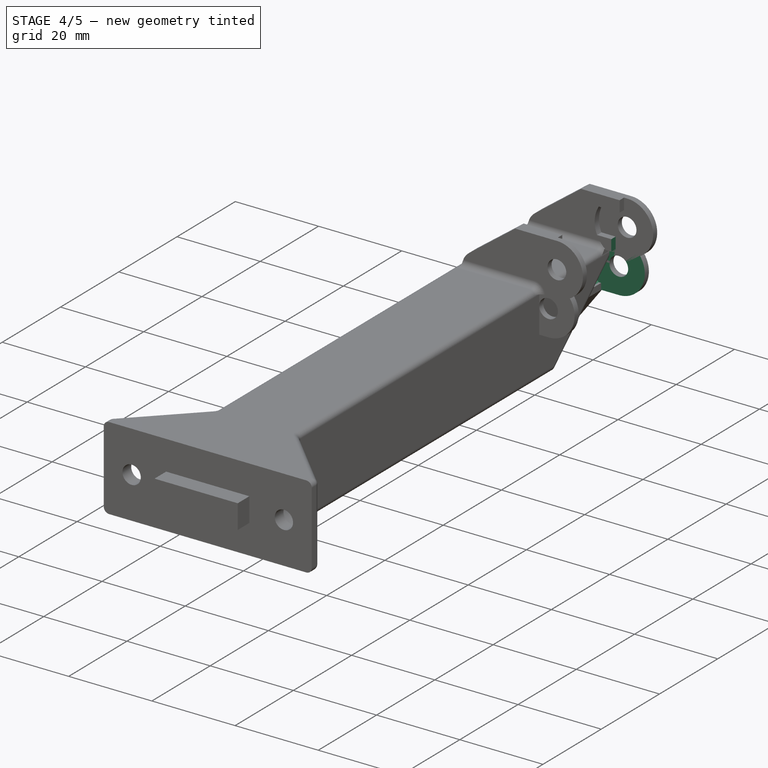
[diagram: stage 4 of 5 — iso view after this stage's code; geometry added in this stage tinted green]
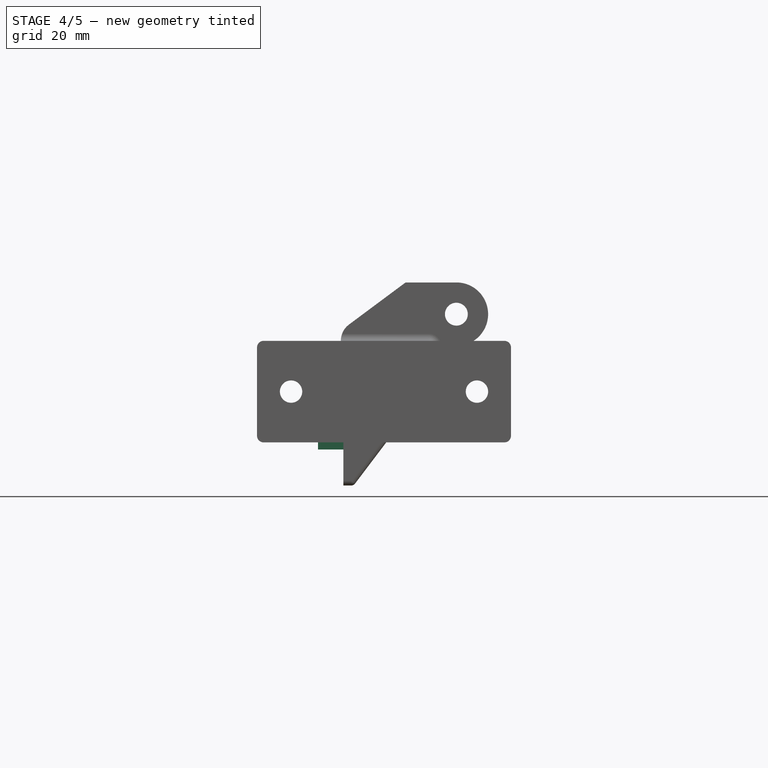
[diagram: stage 4 of 5 — front view after this stage's code; geometry added in this stage tinted green]
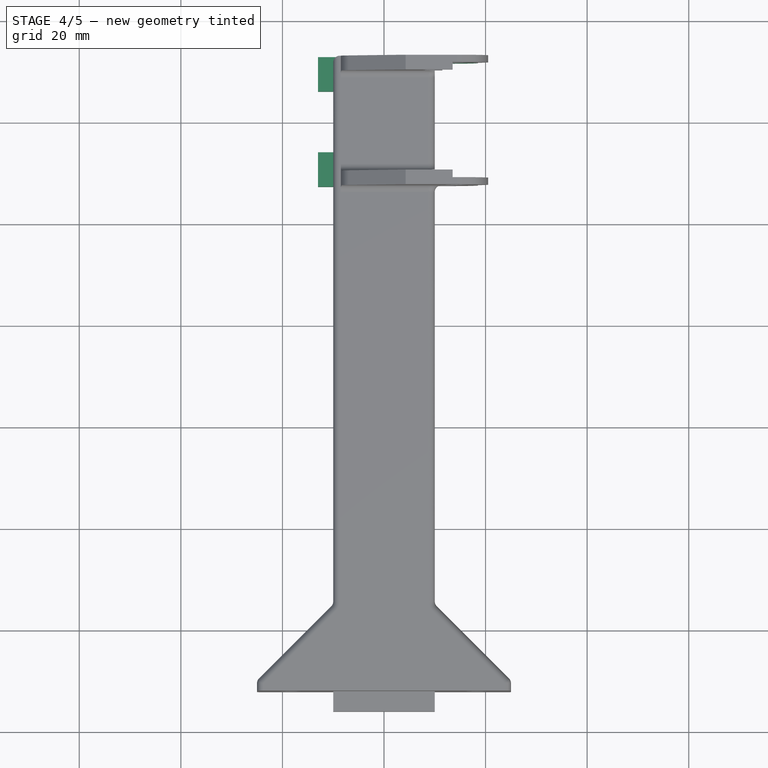
[diagram: stage 4 of 5 — top view after this stage's code; geometry added in this stage tinted green]
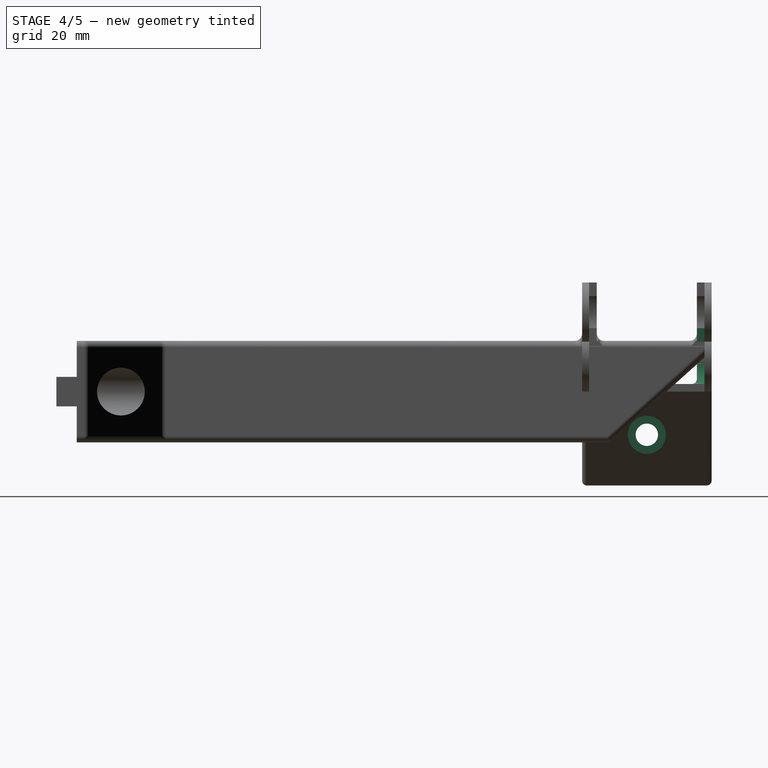
[diagram: stage 4 of 5 — right view after this stage's code; geometry added in this stage tinted green]
FEATURE [Sketcher::SketchObject] Sketch  label="10x20E_TXY"
  FullyConstrained = true
  MapMode = 5
  Support = -> [XY_Plane]
  sketch-geometry (18):
    g0: LineSegment StartX=-8 StartY=12.75 StartZ=0 EndX=8 EndY=12.75 EndZ=0
    g1: LineSegment StartX=8 StartY=12.75 StartZ=0 EndX=8 EndY=-12.75 EndZ=0
    g2: LineSegment StartX=8 StartY=-12.75 StartZ=0 EndX=-8 EndY=-12.75 EndZ=0
    g3: LineSegment StartX=-8 StartY=-12.75 StartZ=0 EndX=-8 EndY=12.75 EndZ=0
    g4: LineSegment StartX=-3e-16 StartY=12.75 StartZ=0 EndX=-3e-16 EndY=-12.75 EndZ=0
    g5: LineSegment StartX=-8 StartY=6e-16 StartZ=0 EndX=8 EndY=6e-16 EndZ=0
    g6: LineSegment StartX=-2.5 StartY=5 StartZ=0 EndX=2.5 EndY=5 EndZ=0
    g7: LineSegment StartX=2.5 StartY=5 StartZ=0 EndX=2.5 EndY=-5 EndZ=0
    g8: LineSegment StartX=2.5 StartY=-5 StartZ=0 EndX=-2.5 EndY=-5 EndZ=0
    g9: LineSegment StartX=-2.5 StartY=-5 StartZ=0 EndX=-2.5 EndY=5 EndZ=0
    g10: ArcOfCircle CenterX=2.5 CenterY=5.25 CenterZ=0 NormalX=0 NormalY=0 NormalZ=1 AngleXU=0 Radius=1.5 StartAngle=2e-16 EndAngle=3.14159
    g11: ArcOfCircle CenterX=2.5 CenterY=4.75 CenterZ=0 NormalX=0 NormalY=0 NormalZ=1 AngleXU=0 Radius=1.5 StartAngle=3.14159 EndAngle=6.28319
    g12: LineSegment StartX=1 StartY=5.25 StartZ=0 EndX=1 EndY=4.75 EndZ=0
    g13: LineSegment StartX=4 StartY=5.25 StartZ=0 EndX=4 EndY=4.75 EndZ=0
    g14: ArcOfCircle CenterX=-2.5 CenterY=-5.25 CenterZ=0 NormalX=0 NormalY=0 NormalZ=1 AngleXU=0 Radius=1.5 StartAngle=3.14159 EndAngle=6.28319
    g15: LineSegment StartX=-4 StartY=-4.75 StartZ=0 EndX=-4 EndY=-5.25 EndZ=0
    g16: ArcOfCircle CenterX=-2.5 CenterY=-4.75 CenterZ=0 NormalX=0 NormalY=0 NormalZ=1 AngleXU=0 Radius=1.5 StartAngle=3e-16 EndAngle=3.14159
    g17: LineSegment StartX=-1 StartY=-4.75 StartZ=0 EndX=-1 EndY=-5.25 EndZ=0
  constraints (45):
    c: Coincident(g0,g1)
    c: Coincident(g1,g2)
    c: Coincident(g2,g3)
    c: Coincident(g3,g0)
    c: Horizontal(g0)
    c: Horizontal(g2)
    c: Vertical(g1)
    c: Vertical(g3)
    c: DistanceX(g0,g0) = 16
    c: DistanceY(g3,g3) = 25.5  'Width'
    c: PointOnObject(g4,g2)
    c: Vertical(g4)
    c: PointOnObject(g5,g1)
    c: Horizontal(g5)
    c: Symmetric(g0,g0,g4)
    c: Symmetric(g2,g0,g5)
    c: Coincident(g6,g7)
    c: Coincident(g7,g8)
    c: Coincident(g8,g9)
    c: Coincident(g9,g6)
    c: Horizontal(g8)
    c: Vertical(g7)
    c: Symmetric(g6,g8,g5)
    c: Symmetric(g6,g6,g4)
    c: DistanceX(g6,g6) = 5
    c: DistanceY(g9,g9) = 10
    c: Tangent(g10,g13) = 1.5708
    c: Tangent(g10,g12) = -1.5708
    c: Tangent(g12,g11) = -1.5708
    c: Tangent(g13,g11) = 1.5708
    c: Vertical(g12)
    c: Equal(g10,g11)
    c: Radius(g10) = 1.5
    c: Distance(g12) = 0.5
    c: Tangent(g16,g17) = 1.5708
    c: Tangent(g16,g15) = -1.5708
    c: Tangent(g15,g14) = -1.5708
    c: Tangent(g17,g14) = 1.5708
    c: Vertical(g15)
    c: Equal(g16,g14)
    c: Equal(g10,g16) = 1.5
    c: Equal(g12,g15) = 3
    c: Symmetric(g0,g1,g-1)  '__ANCHOR__'
    c: Symmetric(g10,g11,g6)
    c: Symmetric(g14,g16,g8)
FEATURE [Sketcher::SketchObject] Sketch001  label="10x20E_TXZ"
  ExternalGeometry = -> [Sketch]
  FullyConstrained = true
  MapMode = 5
  Placement = pos=(0,0,0) rot=(1,0,0;1.5708rad)
  Support = -> [XZ_Plane]
  sketch-geometry (15):
    g0: LineSegment StartX=12.25 StartY=2.7e-15 StartZ=0 EndX=-8 EndY=2.7e-15 EndZ=0
    g1: LineSegment StartX=-8 StartY=2.7e-15 StartZ=0 EndX=-8 EndY=7.5 EndZ=0
    g2: LineSegment StartX=-8 StartY=7.5 StartZ=0 EndX=0.660254 EndY=12.5 EndZ=0
    g3: LineSegment StartX=0.660254 StartY=12.5 StartZ=0 EndX=12.25 EndY=12.5 EndZ=0
    g4: LineSegment StartX=12.25 StartY=12.5 StartZ=0 EndX=12.25 EndY=3.6e-15 EndZ=0
    g5: ArcOfCircle CenterX=12.25 CenterY=6.25 CenterZ=0 NormalX=0 NormalY=0 NormalZ=1 AngleXU=0 Radius=6.25 StartAngle=4.71239 EndAngle=7.85398
    g6: Circle CenterX=12.25 CenterY=6.25 CenterZ=0 NormalX=0 NormalY=0 NormalZ=1 AngleXU=0 Radius=2.25
    g7: LineSegment StartX=12.25 StartY=6.25 StartZ=0 EndX=18.5 EndY=6.25 EndZ=0
    g8: ArcOfCircle CenterX=12.25 CenterY=6.25 CenterZ=0 NormalX=0 NormalY=0 NormalZ=1 AngleXU=0 Radius=6.25 StartAngle=1.5708 EndAngle=4.71239
    g9: LineSegment StartX=11.5 StartY=12.5 StartZ=0 EndX=11.5 EndY=9.8 EndZ=0
    g10: LineSegment StartX=11.5 StartY=9.8 StartZ=0 EndX=6.50892 EndY=9.8 EndZ=0
    g11: ArcOfCircle CenterX=12.25 CenterY=6.25 CenterZ=0 NormalX=0 NormalY=0 NormalZ=1 AngleXU=0 Radius=6.75 StartAngle=2.58779 EndAngle=4.03131
    g12: LineSegment StartX=6.50892 StartY=9.8 StartZ=0 EndX=6.93419 EndY=9.53704 EndZ=0
    g13: LineSegment StartX=8 StartY=2.8e-15 StartZ=0 EndX=8 EndY=1.00596 EndZ=0
    g14: LineSegment StartX=-8 StartY=1.5 StartZ=0 EndX=7.45417 EndY=1.5 EndZ=0
  constraints (44):
    c: Horizontal(g0)
    c: Coincident(g0,g1)
    c: Vertical(g1)
    c: Coincident(g1,g2)
    c: Coincident(g2,g3)
    c: Horizontal(g3)
    c: Coincident(g4,g3)
    c: Coincident(g4,g0)
    c: Vertical(g4)
    c: PointOnObject(g5,g4)
    c: Coincident(g5,g3)
    c: Coincident(g5,g0)
    c: Coincident(g6,g5)
    c: Radius(g5) = 6.25
    c: Coincident(g7,g5)
    c: PointOnObject(g7,g5)
    c: Horizontal(g7)
    c: DistanceX(g0,g7) = 26.5
    c: DistanceY(g1,g1) = 7.5
    c: Angle(g0,g2) = 0.523599
    c: Radius(g6) = 2.25
    c: Coincident(g0,g-3)
    c: Coincident(g8,g5)
    c: Coincident(g8,g0)
    c: PointOnObject(g8,g4)
    c: PointOnObject(g9,g3)
    c: Vertical(g9)
    c: Coincident(g10,g9)
    c: Horizontal(g10)
    c: DistanceY(g9,g9) = 2.7
    c: DistanceX(g9,g7) = 7
    c: Coincident(g11,g5)
    c: Coincident(g11,g10)
    c: Coincident(g12,g10)
    c: PointOnObject(g12,g8)
    c: PointOnObject(g5,g12)
    c: Distance(g12) = 0.5
    c: Coincident(g13,g-3)
    c: Coincident(g13,g11)
    c: Vertical(g13)
    c: PointOnObject(g14,g1)
    c: PointOnObject(g14,g11)
    c: Horizontal(g14)
    c: DistanceY(g0,g14) = 1.5  'BaseThickness'
FEATURE [Sketcher::SketchObject] Sketch002
  ExternalGeometry = -> [Sketch]
  FullyConstrained = true
  MapMode = 5
  Support = -> [XY_Plane]
  sketch-geometry (12):
    g0: LineSegment StartX=-8 StartY=12.75 StartZ=0 EndX=8 EndY=12.75 EndZ=0
    g1: LineSegment StartX=8 StartY=12.75 StartZ=0 EndX=8 EndY=-12.75 EndZ=0
    g2: LineSegment StartX=8 StartY=-12.75 StartZ=0 EndX=-8 EndY=-12.75 EndZ=0
    g3: LineSegment StartX=-8 StartY=-12.75 StartZ=0 EndX=-8 EndY=12.75 EndZ=0
    g4: ArcOfCircle CenterX=2.5 CenterY=4.75 CenterZ=0 NormalX=0 NormalY=0 NormalZ=1 AngleXU=0 Radius=1.5 StartAngle=3.14159 EndAngle=6.28319
    g5: ArcOfCircle CenterX=2.5 CenterY=5.25 CenterZ=0 NormalX=0 NormalY=0 NormalZ=1 AngleXU=0 Radius=1.5 StartAngle=3.8e-15 EndAngle=3.14159
    g6: LineSegment StartX=4 StartY=4.75 StartZ=0 EndX=4 EndY=5.25 EndZ=0
    g7: LineSegment StartX=1 StartY=4.75 StartZ=0 EndX=1 EndY=5.25 EndZ=0
    g8: ArcOfCircle CenterX=-2.5 CenterY=-4.75 CenterZ=0 NormalX=0 NormalY=0 NormalZ=1 AngleXU=0 Radius=1.5 StartAngle=-7.1e-15 EndAngle=3.14159
    g9: ArcOfCircle CenterX=-2.5 CenterY=-5.25 CenterZ=0 NormalX=0 NormalY=0 NormalZ=1 AngleXU=0 Radius=1.5 StartAngle=3.14159 EndAngle=6.28319
    g10: LineSegment StartX=-4 StartY=-4.75 StartZ=0 EndX=-4 EndY=-5.25 EndZ=0
    g11: LineSegment StartX=-1 StartY=-4.75 StartZ=0 EndX=-1 EndY=-5.25 EndZ=0
  constraints (26):
    c: Coincident(g0,g1)
    c: Coincident(g1,g2)
    c: Coincident(g2,g3)
    c: Coincident(g3,g0)
    c: Horizontal(g0)
    c: Horizontal(g2)
    c: Vertical(g1)
    c: Vertical(g3)
    c: Coincident(g0,g-3)
    c: Coincident(g1,g-4)
    c: Tangent(g4,g7) = 1.5708
    c: Tangent(g4,g6) = -1.5708
    c: Tangent(g6,g5) = -1.5708
    c: Tangent(g7,g5) = 1.5708
    c: Vertical(g6)
    c: Coincident(g4,g-5)
    c: Tangent(g8,g11) = 1.5708
    c: Tangent(g8,g10) = -1.5708
    c: Tangent(g10,g9) = -1.5708
    c: Tangent(g11,g9) = 1.5708
    c: Vertical(g10)
    c: Coincident(g8,g-7)
    c: Equal(g4,g-5)
    c: Equal(g8,g-7)
    c: Coincident(g5,g-6)
    c: Coincident(g9,g-8)
FEATURE [PartDesign::Pad] Pad
  Direction = (1,1,1)
  Length = 1.5
  Length2 = 100
  Profile = -> Sketch002
  Type = 0
  expr: Length = <<10x20E_TXZ>>.Constraints.BaseThickness
FEATURE [PartDesign::Pocket] Pocket003
  BaseFeature = -> Pocket002
  Length = 11.35
  Length2 = 100
  Profile = -> Sketch013
  Reversed = true
  Type = 0
  expr: Length = -<<Sketch013>>.AttachmentOffset.Base.z
FEATURE [PartDesign::Pocket] Pocket004
  BaseFeature = -> Pocket003
  Length = 5
  Length2 = 100
  Profile = -> Sketch015
  Type = 1
FEATURE [PartDesign::Pocket] Pocket005
  BaseFeature = -> Pocket004
  Length = 5
  Length2 = 100
  Profile = -> Sketch016
  Type = 1
FEATURE [PartDesign::Pad] Pad006
  BaseFeature = -> Pocket005
  Direction = (1,1,1)
  Length = 5
  Length2 = 100
  Profile = -> Sketch017
  Refine = true
  Type = 0
FEATURE [PartDesign::Fillet] Fillet001
  Base = -> Pad006 [Edge21,Edge23,Edge4,Edge3,Edge2,Edge42,Edge38]
  BaseFeature = -> Pad006
  Radius = 1
  SupportTransform = false
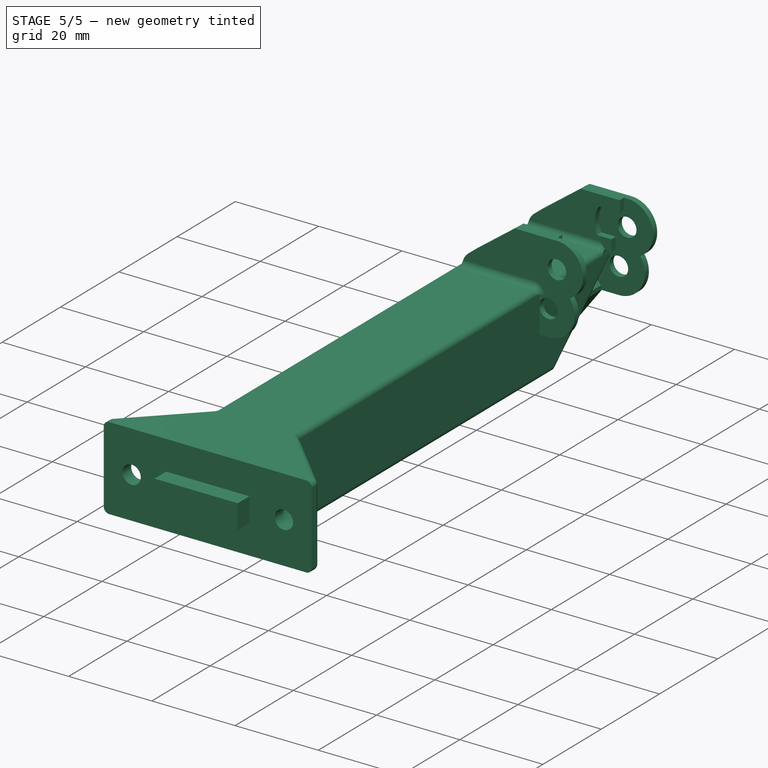
[diagram: stage 5 of 5 — iso view after this stage's code; geometry added in this stage tinted green]
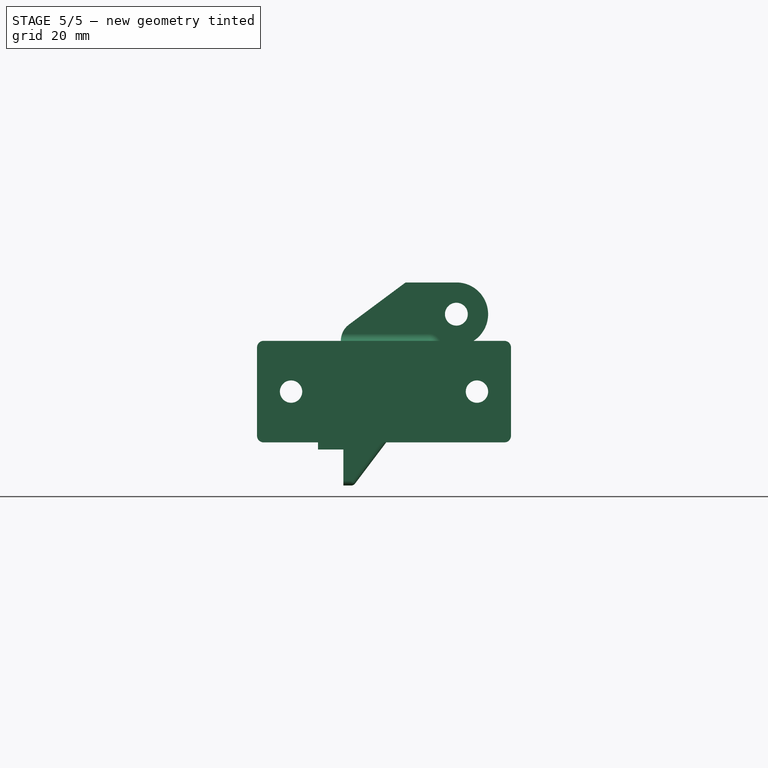
[diagram: stage 5 of 5 — front view after this stage's code; geometry added in this stage tinted green]
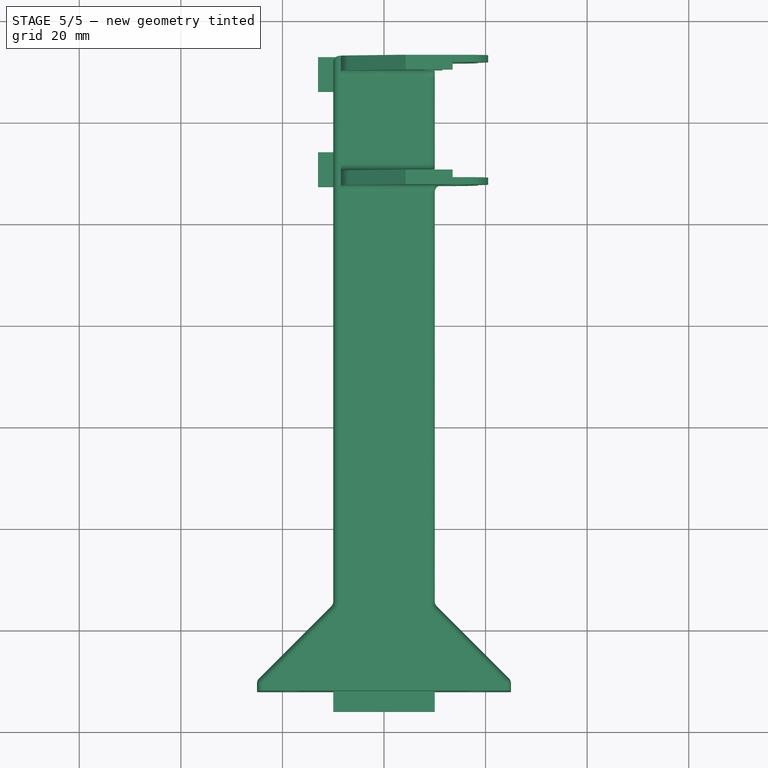
[diagram: stage 5 of 5 — top view after this stage's code; geometry added in this stage tinted green]
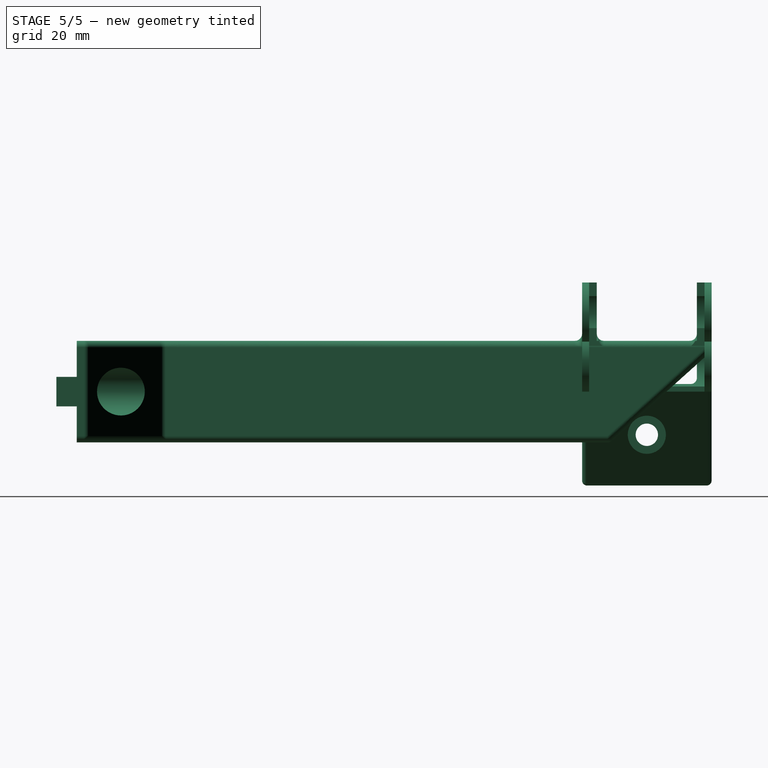
[diagram: stage 5 of 5 — right view after this stage's code; geometry added in this stage tinted green]
FEATURE [Sketcher::SketchObject] Sketch003
  AttachmentOffset = pos=(0,0,12.75) rot=(0,0,1;0rad)
  ExternalGeometry = -> [Sketch001]
  FullyConstrained = true
  MapMode = 5
  Placement = pos=(0,-12.75,-2.8e-15) rot=(1,0,0;1.5708rad)
  Support = -> [XZ_Plane]
  expr: .AttachmentOffset.Base.z = <<10x20E_TXY>>.Constraints.Width / 2
  sketch-geometry (6):
    g0: Circle CenterX=12.25 CenterY=6.25 CenterZ=0 NormalX=0 NormalY=0 NormalZ=1 AngleXU=0 Radius=2.25
    g1: ArcOfCircle CenterX=12.25 CenterY=6.25 CenterZ=0 NormalX=0 NormalY=0 NormalZ=1 AngleXU=0 Radius=6.25 StartAngle=4.71238 EndAngle=7.85399
    g2: LineSegment StartX=12.25 StartY=12.5 StartZ=0 EndX=0.660254 EndY=12.5 EndZ=0
    g3: LineSegment StartX=0.660254 StartY=12.5 StartZ=0 EndX=-8 EndY=7.5 EndZ=0
    g4: LineSegment StartX=-8 StartY=7.5 StartZ=0 EndX=-8 EndY=3.6e-15 EndZ=0
    g5: LineSegment StartX=-8 StartY=3.6e-15 StartZ=0 EndX=12.25 EndY=8.2232e-11 EndZ=0
  constraints (13):
    c: Equal(g0,g-6)
    c: Coincident(g0,g-6)
    c: Coincident(g1,g-5)
    c: Coincident(g1,g-5)
    c: Equal(g1,g-5)
    c: Coincident(g1,g2)
    c: Coincident(g2,g-4)
    c: Coincident(g2,g3)
    c: Coincident(g3,g-4)
    c: Coincident(g3,g4)
    c: Coincident(g4,g-3)
    c: Coincident(g4,g5)
    c: Coincident(g5,g1)
FEATURE [PartDesign::Pad] Pad001
  BaseFeature = -> Pad
  Direction = (1,1,1)
  Length = 2.9
  Length2 = 100
  Profile = -> Sketch003
  Refine = true
  Reversed = true
  Type = 0
FEATURE [Sketcher::SketchObject] Sketch004
  AttachmentOffset = pos=(0,0,-12.75) rot=(0,0,1;0rad)
  ExternalGeometry = -> [Sketch001]
  FullyConstrained = true
  MapMode = 5
  Placement = pos=(0,12.75,2.8e-15) rot=(1,0,0;1.5708rad)
  Support = -> [XZ_Plane]
  expr: .AttachmentOffset.Base.z = -<<10x20E_TXY>>.Constraints.Width / 2
  sketch-geometry (6):
    g0: LineSegment StartX=12.25 StartY=9.97877e-11 StartZ=0 EndX=-8 EndY=3.6e-15 EndZ=0
    g1: LineSegment StartX=-8 StartY=3.6e-15 StartZ=0 EndX=-8 EndY=7.5 EndZ=0
    g2: LineSegment StartX=-8 StartY=7.5 StartZ=0 EndX=0.660254 EndY=12.5 EndZ=0
    g3: LineSegment StartX=0.660254 StartY=12.5 StartZ=0 EndX=12.25 EndY=12.5 EndZ=0
    g4: ArcOfCircle CenterX=12.25 CenterY=6.25 CenterZ=0 NormalX=0 NormalY=0 NormalZ=1 AngleXU=0 Radius=6.25 StartAngle=4.71238 EndAngle=7.85399
    g5: Circle CenterX=12.25 CenterY=6.25 CenterZ=0 NormalX=0 NormalY=0 NormalZ=1 AngleXU=0 Radius=2.25
  constraints (13):
    c: Coincident(g-5,g0)
    c: Coincident(g0,g-3)
    c: Coincident(g0,g1)
    c: Coincident(g1,g-4)
    c: Coincident(g1,g2)
    c: Coincident(g2,g-4)
    c: Coincident(g2,g3)
    c: Coincident(g3,g-5)
    c: Coincident(g4,g3)
    c: Coincident(g4,g0)
    c: Equal(g4,g-5)
    c: Coincident(g5,g4)
    c: Equal(g5,g-6)
FEATURE [PartDesign::Pad] Pad002
  BaseFeature = -> Pad001
  Direction = (1,1,1)
  Length = 2.9
  Length2 = 100
  Profile = -> Sketch004
  Refine = true
  Type = 0
  expr: Length = <<Pad001>>.Length
FEATURE [Sketcher::SketchObject] Sketch005
  AttachmentOffset = pos=(0,0,11.35) rot=(0,0,1;0rad)
  ExternalGeometry = -> [Sketch001]
  FullyConstrained = true
  MapMode = 5
  Placement = pos=(0,-11.35,-2.5e-15) rot=(1,0,0;1.5708rad)
  Support = -> [XZ_Plane]
  expr: .AttachmentOffset.Base.z = <<Sketch003>>.AttachmentOffset.Base.z - 1.4mm
  sketch-geometry (8):
    g0: LineSegment StartX=18.6 StartY=12.5 StartZ=0 EndX=18.6 EndY=3.6e-15 EndZ=0
    g1: LineSegment StartX=18.5 StartY=12.5 StartZ=0 EndX=18.5 EndY=3.6e-15 EndZ=0
    g2: LineSegment StartX=11.5 StartY=12.5 StartZ=0 EndX=18.6 EndY=12.5 EndZ=0
    g3: LineSegment StartX=8 StartY=2.9e-15 StartZ=0 EndX=18.6 EndY=2.9e-15 EndZ=0
    g4: ArcOfCircle CenterX=12.25 CenterY=6.25 CenterZ=0 NormalX=0 NormalY=0 NormalZ=1 AngleXU=0 Radius=6.75 StartAngle=2.58779 EndAngle=4.03131
    g5: LineSegment StartX=6.50892 StartY=9.8 StartZ=0 EndX=11.5 EndY=9.8 EndZ=0
    g6: LineSegment StartX=11.5 StartY=9.8 StartZ=0 EndX=11.5 EndY=12.5 EndZ=0
    g7: LineSegment StartX=8 StartY=1.00596 StartZ=0 EndX=8 EndY=2.9e-15 EndZ=0
  constraints (21):
    c: Vertical(g0)
    c: Vertical(g1)
    c: DistanceX(g1,g0) = 0.1
    c: Tangent(g1,g-3)
    c: Horizontal(g2)
    c: Coincident(g2,g0)
    c: PointOnObject(g1,g2)
    c: Coincident(g3,g0)
    c: Horizontal(g3)
    c: PointOnObject(g1,g3)
    c: Coincident(g4,g-4)
    c: Equal(g4,g-4)
    c: Coincident(g2,g-5)
    c: Coincident(g5,g4)
    c: Coincident(g5,g-5)
    c: Coincident(g6,g5)
    c: Coincident(g6,g2)
    c: Coincident(g4,g-4)
    c: Coincident(g7,g4)
    c: Coincident(g7,g-6)
    c: Coincident(g3,g7)
FEATURE [PartDesign::Pocket] Pocket
  BaseFeature = -> Pad002
  Length = 11.35
  Length2 = 100
  Profile = -> Sketch005
  Type = 0
  expr: Length = <<Sketch005>>.AttachmentOffset.Base.z
FEATURE [Sketcher::SketchObject] Sketch006
  AttachmentOffset = pos=(0,0,-11.35) rot=(0,0,1;0rad)
  ExternalGeometry = -> [Sketch001]
  FullyConstrained = true
  MapMode = 5
  Placement = pos=(0,11.35,2.5e-15) rot=(1,0,0;1.5708rad)
  Support = -> [XZ_Plane]
  expr: .AttachmentOffset.Base.z = <<Sketch004>>.AttachmentOffset.Base.z + 1.4mm
  sketch-geometry (8):
    g0: LineSegment StartX=18.6 StartY=12.5 StartZ=0 EndX=18.6 EndY=3.6e-15 EndZ=0
    g1: LineSegment StartX=18.5 StartY=12.5 StartZ=0 EndX=18.5 EndY=3.6e-15 EndZ=0
    g2: LineSegment StartX=11.5 StartY=12.5 StartZ=0 EndX=18.6 EndY=12.5 EndZ=0
    g3: LineSegment StartX=8 StartY=2.9e-15 StartZ=0 EndX=18.6 EndY=2.9e-15 EndZ=0
    g4: ArcOfCircle CenterX=12.25 CenterY=6.25 CenterZ=0 NormalX=0 NormalY=0 NormalZ=1 AngleXU=0 Radius=6.75 StartAngle=2.58779 EndAngle=4.03131
    g5: LineSegment StartX=6.50892 StartY=9.8 StartZ=0 EndX=11.5 EndY=9.8 EndZ=0
    g6: LineSegment StartX=11.5 StartY=9.8 StartZ=0 EndX=11.5 EndY=12.5 EndZ=0
    g7: LineSegment StartX=8 StartY=1.00596 StartZ=0 EndX=8 EndY=2.9e-15 EndZ=0
  constraints (21):
    c: Vertical(g0)
    c: Vertical(g1)
    c: DistanceX(g1,g0) = 0.1
    c: Tangent(g1,g-3)
    c: Horizontal(g2)
    c: Coincident(g2,g0)
    c: PointOnObject(g1,g2)
    c: Coincident(g3,g0)
    c: Horizontal(g3)
    c: PointOnObject(g1,g3)
    c: Coincident(g4,g-4)
    c: Equal(g4,g-4)
    c: Coincident(g2,g-5)
    c: Coincident(g5,g4)
    c: Coincident(g5,g-5)
    c: Coincident(g6,g5)
    c: Coincident(g6,g2)
    c: Coincident(g4,g-4)
    c: Coincident(g7,g4)
    c: Coincident(g7,g-6)
    c: Coincident(g3,g7)
FEATURE [PartDesign::Pocket] Pocket001
  BaseFeature = -> Pocket
  Length = 11.35
  Length2 = 100
  Profile = -> Sketch006
  Reversed = true
  Type = 0
  expr: Length = -<<Sketch006>>.AttachmentOffset.Base.z
FEATURE [PartDesign::Fillet] Fillet
  Base = -> Pocket001 [Edge48,Edge94]
  BaseFeature = -> Pocket001
  Radius = 1.2
  SupportTransform = false
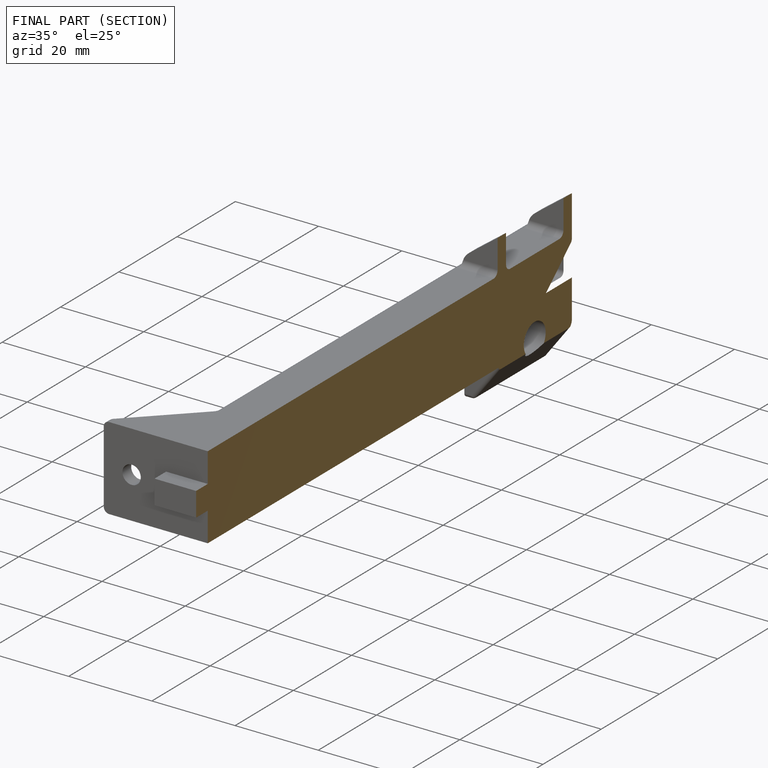
[diagram: finished part — half-section view (interior)]
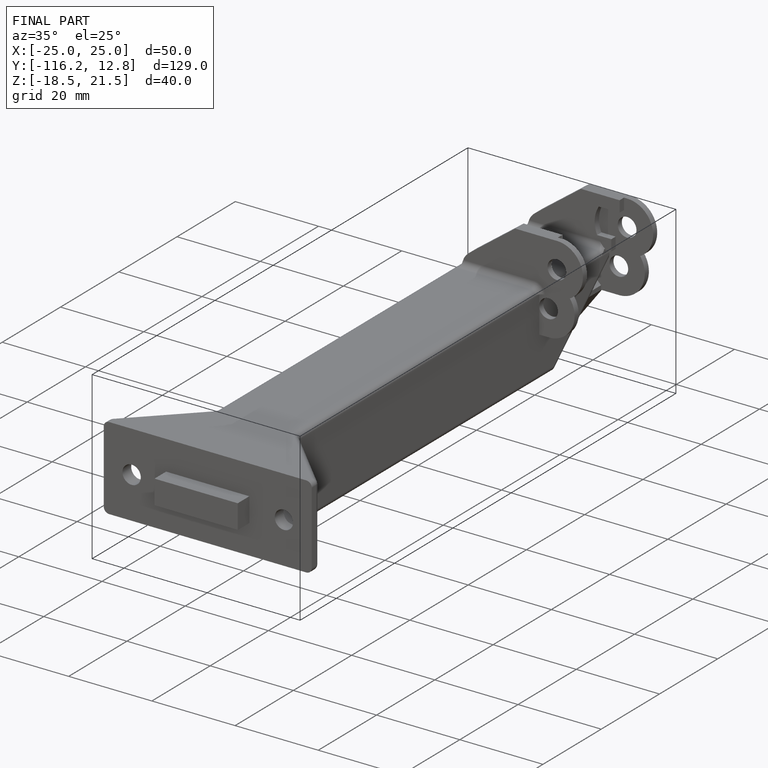
[diagram: finished part — iso view with bounding-box wireframe]
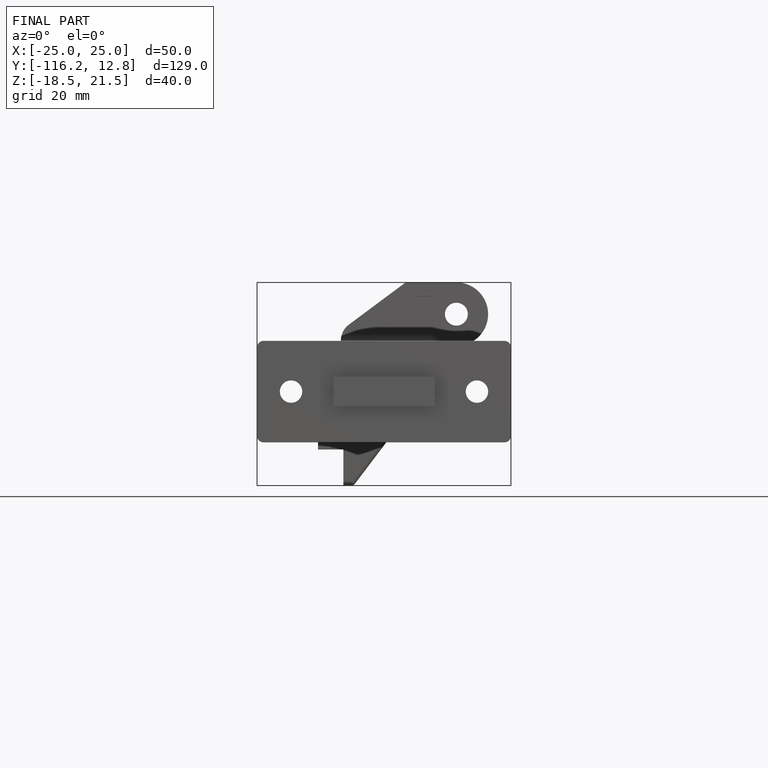
[diagram: finished part — front view with bounding-box wireframe]
